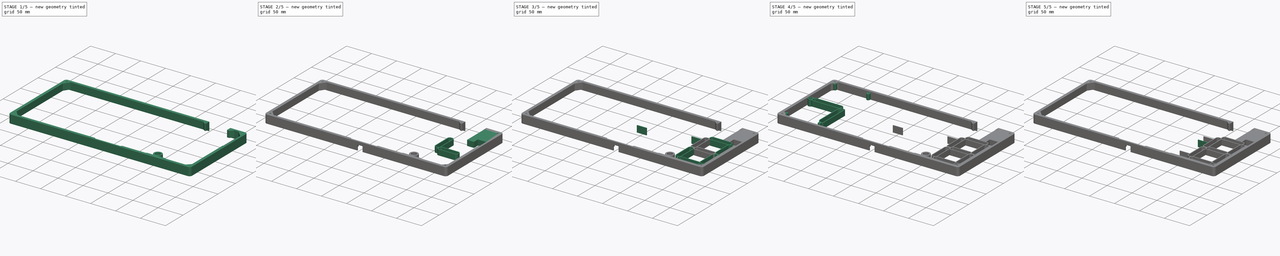
[diagram: build sequence overview — one tinted view per stage of 5, left to right]
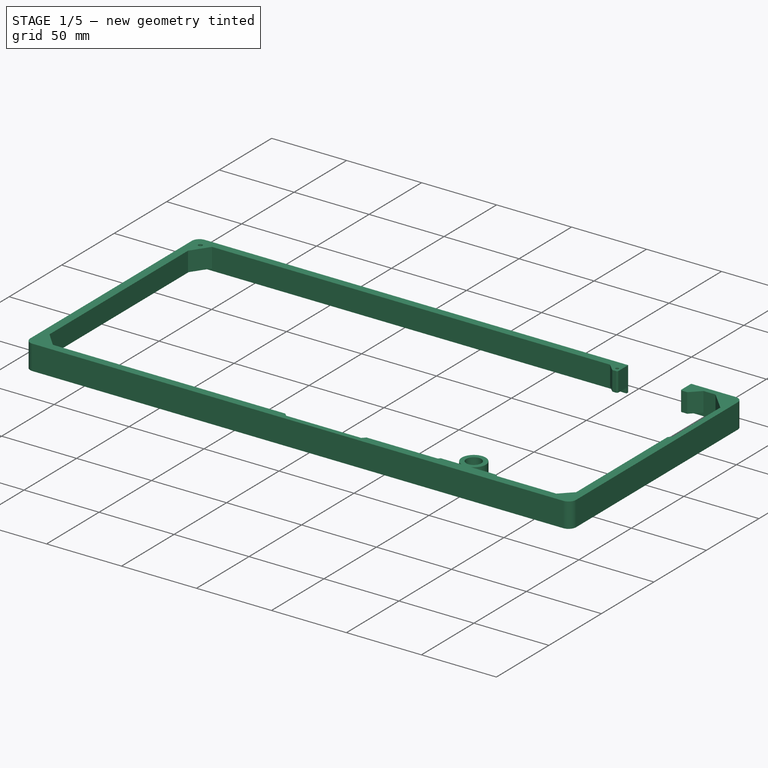
[diagram: stage 1 of 5 — iso view after this stage's code; geometry added in this stage tinted green]
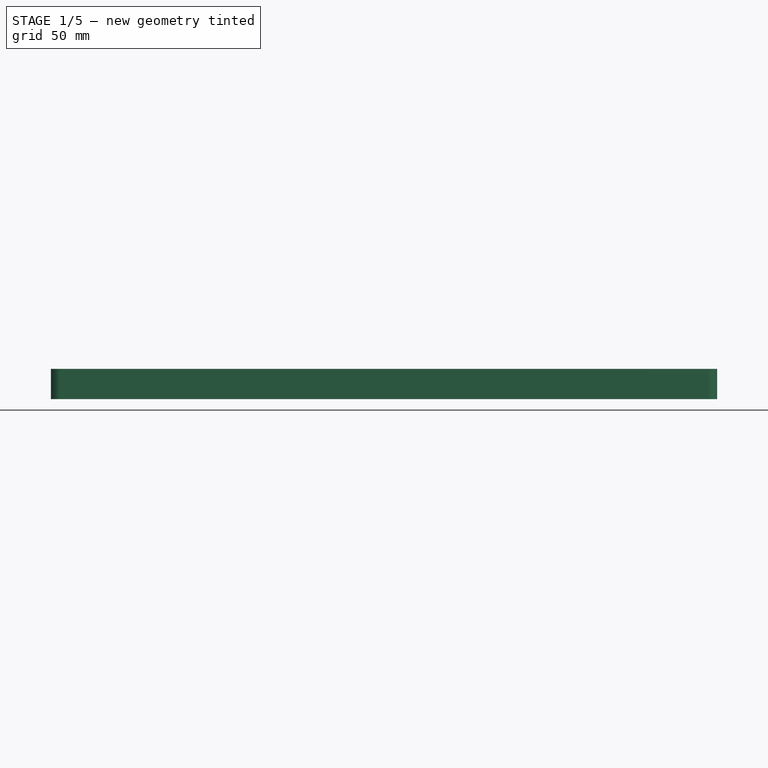
[diagram: stage 1 of 5 — front view after this stage's code; geometry added in this stage tinted green]
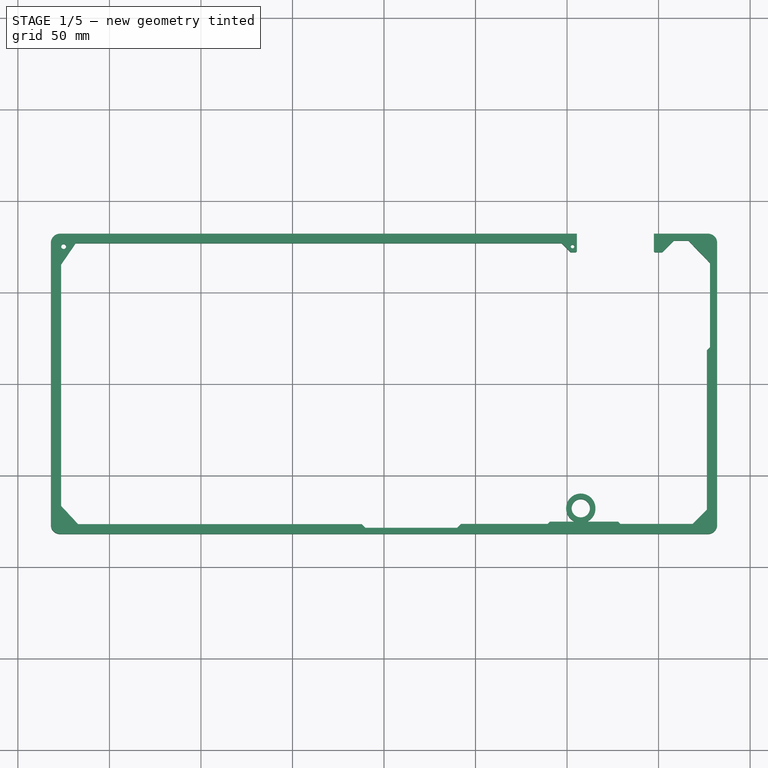
[diagram: stage 1 of 5 — top view after this stage's code; geometry added in this stage tinted green]
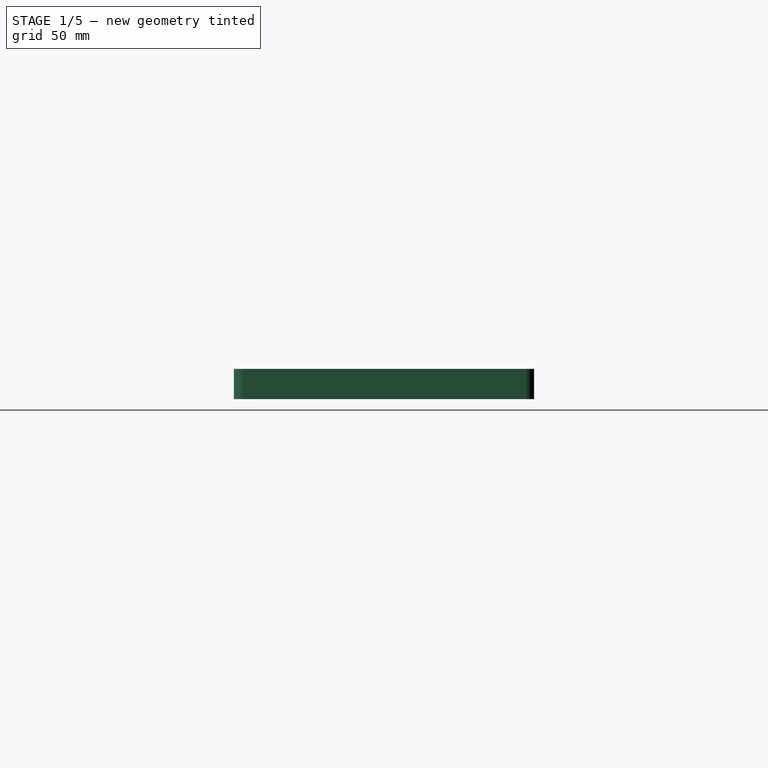
[diagram: stage 1 of 5 — right view after this stage's code; geometry added in this stage tinted green]
FCSTD DOCUMENT  (FreeCAD 1.0R39285 (Git))
Label: digitform_11_tocheck
License: All rights reserved
LicenseURL: https://en.wikipedia.org/wiki/All_rights_reserved
objects: PartDesign::Body×37, Sketcher::SketchObject×26, PartDesign::FeatureBase×20, PartDesign::Pad×15, PartDesign::Pocket×11, PartDesign::Fillet×6, PartDesign::Boolean×3, Image::ImagePlane×1
note: 231 computed .brp shape members not serialized (recipe doc carries the construction recipe); baked Part::Feature solids carry a one-line shape summary decoded from their .brp

FEATURE [PartDesign::Body] Body016
  AllowCompound = false
  Group = -> [Clone007]
  Origin = -> Origin016
  Placement = pos=(196,0,0) rot=(0,0,1;0rad)
  Tip = -> Clone007
FEATURE [Sketcher::SketchObject] Sketch009
  ArcFitTolerance = 1e-06
  AttachmentSupport = -> [XY_Plane020]
  FullyConstrained = true
  MakeInternals = false
  MapMode = 5
  sketch-geometry (2):
    g0: Circle CenterX=107.5 CenterY=-68 CenterZ=0 NormalX=0 NormalY=0 NormalZ=1 AngleXU=0 Radius=5
    g1: Circle CenterX=107.5 CenterY=-68 CenterZ=0 NormalX=0 NormalY=0 NormalZ=1 AngleXU=0 Radius=8
  constraints (5):
    c: Radius(g0) = 5
    c: DistanceX(g-1,g0) = 107.5
    c: DistanceY(g0,g-1) = 68
    c: Coincident(g1,g0)
    c: Radius(g1) = 8
FEATURE [PartDesign::Pad] Pad007
  Direction = (0,0,1)
  Length = 13
  Length2 = 10
  Profile = -> Sketch009
  ReferenceAxis = -> Sketch009 [N_Axis]
  Refine = true
  Suppressed = false
  Type = 0
FEATURE [PartDesign::Body] Body024
  AllowCompound = false
  Group = -> [Sketch011,Pad009]
  Origin = -> Origin024
  Tip = -> Pad009
FEATURE [Sketcher::SketchObject] Sketch012
  ArcFitTolerance = 1e-06
  FullyConstrained = true
  MakeInternals = false
  sketch-geometry (34):
    g0: LineSegment StartX=-177 StartY=82 StartZ=0 EndX=177 EndY=82 EndZ=0
    g1: LineSegment StartX=182 StartY=-77 StartZ=0 EndX=182 EndY=77 EndZ=0
    g2: LineSegment StartX=-177 StartY=-82 StartZ=0 EndX=177 EndY=-82 EndZ=0
    g3: LineSegment StartX=-182 StartY=-77 StartZ=0 EndX=-182 EndY=77 EndZ=0
    g4: ArcOfCircle CenterX=177 CenterY=77 CenterZ=0 NormalX=0 NormalY=0 NormalZ=1 AngleXU=0 Radius=5 StartAngle=0 EndAngle=1.5708
    g5: GeomPoint [constr] X=182 Y=82 Z=0
    g6: ArcOfCircle CenterX=177 CenterY=-77 CenterZ=0 NormalX=0 NormalY=0 NormalZ=1 AngleXU=0 Radius=5 StartAngle=4.71239 EndAngle=6.28319
    g7: GeomPoint [constr] X=182 Y=-82 Z=0
    g8: ArcOfCircle CenterX=-177 CenterY=-77 CenterZ=0 NormalX=0 NormalY=0 NormalZ=1 AngleXU=0 Radius=5 StartAngle=3.14159 EndAngle=4.71239
    g9: GeomPoint [constr] X=-182 Y=-82 Z=0
    g10: ArcOfCircle CenterX=-177 CenterY=77 CenterZ=0 NormalX=0 NormalY=0 NormalZ=1 AngleXU=0 Radius=5 StartAngle=1.5708 EndAngle=3.14159
    g11: GeomPoint [constr] X=-182 Y=82 Z=0
    g12: LineSegment StartX=-168.5 StartY=76.8 StartZ=0 EndX=97 EndY=76.8 EndZ=0
    g13: LineSegment StartX=97 StartY=76.8 StartZ=0 EndX=101.95 EndY=71.8503 EndZ=0
    g14: LineSegment StartX=101.95 StartY=71.8503 StartZ=0 EndX=151.95 EndY=71.8503 EndZ=0
    g15: LineSegment StartX=151.95 StartY=71.8503 StartZ=0 EndX=158.314 EndY=78.2142 EndZ=0
    g16: LineSegment StartX=158.314 StartY=78.2142 StartZ=0 EndX=166.314 EndY=78.2142 EndZ=0
    g17: LineSegment StartX=166.314 StartY=78.2142 StartZ=0 EndX=178.123 EndY=65.9854 EndZ=0
    g18: LineSegment StartX=178.123 StartY=65.9854 StartZ=0 EndX=178.123 EndY=19.9854 EndZ=0
    g19: LineSegment StartX=178.123 StartY=19.9854 StartZ=0 EndX=176.355 EndY=18.2177 EndZ=0
    g20: LineSegment StartX=176.355 StartY=18.2177 StartZ=0 EndX=176.355 EndY=-68.7823 EndZ=0
    g21: LineSegment StartX=176.355 StartY=-68.7823 StartZ=0 EndX=168.555 EndY=-76.5823 EndZ=0
    g22: LineSegment StartX=168.555 StartY=-76.5823 StartZ=0 EndX=129.155 EndY=-76.5823 EndZ=0
    g23: LineSegment StartX=129.155 StartY=-76.5823 StartZ=0 EndX=127.882 EndY=-75.3095 EndZ=0
    g24: LineSegment StartX=127.882 StartY=-75.3095 StartZ=0 EndX=90.6824 EndY=-75.3095 EndZ=0
    g25: LineSegment StartX=90.6824 StartY=-75.3095 StartZ=0 EndX=89.4096 EndY=-76.5823 EndZ=0
    g26: LineSegment StartX=-176.392 StartY=-66.7238 StartZ=0 EndX=-176.392 EndY=65.2762 EndZ=0
    g27: LineSegment StartX=-176.392 StartY=65.2762 StartZ=0 EndX=-168.5 EndY=76.8 EndZ=0
    g28: LineSegment StartX=-167.092 StartY=-76.7238 StartZ=0 EndX=-12.0917 EndY=-76.7238 EndZ=0
    g29: LineSegment StartX=-12.0917 StartY=-76.7238 StartZ=0 EndX=-10.1118 EndY=-78.7037 EndZ=0
    g30: LineSegment StartX=-10.1118 StartY=-78.7037 StartZ=0 EndX=39.8882 EndY=-78.7037 EndZ=0
    g31: LineSegment StartX=39.8882 StartY=-78.7037 StartZ=0 EndX=42.0096 EndY=-76.5823 EndZ=0
    g32: LineSegment StartX=42.0096 StartY=-76.5823 StartZ=0 EndX=89.4096 EndY=-76.5823 EndZ=0
    g33: LineSegment StartX=-167.092 StartY=-76.7238 StartZ=0 EndX=-176.392 EndY=-66.7238 EndZ=0
  constraints (94):
    c: Horizontal(g0)
    c: Vertical(g1)
    c: Horizontal(g2)
    c: Vertical(g3)
    c: DistanceX(g11,g5) = 364
    c: DistanceX(g11,g-1) = 182
    c: DistanceY(g-1,g5) = 82
    c: DistanceY(g7,g-1) = 82
    c: PointOnObject(g5,g0)
    c: PointOnObject(g5,g1)
    c: Tangent(g0,g4) = 1.5708
    c: Tangent(g1,g4) = -1.5708
    c: Radius(g4) = 5
    c: PointOnObject(g7,g1)
    c: PointOnObject(g7,g2)
    c: Tangent(g1,g6) = -1.5708
    c: Tangent(g2,g6) = -1.5708
    c: Radius(g6) = 5
    c: PointOnObject(g9,g3)
    c: PointOnObject(g9,g2)
    c: Tangent(g3,g8) = 1.5708
    c: Tangent(g2,g8) = -1.5708
    c: Radius(g8) = 5
    c: PointOnObject(g11,g3)
    c: PointOnObject(g11,g0)
    c: Tangent(g3,g10) = 1.5708
    c: Tangent(g0,g10) = 1.5708
    c: Radius(g10) = 5
    c: Horizontal(g12)
    c: DistanceY(g-1,g12) = 76.8
    c: Distance(g13) = 7
    c: Angle(g-1,g13) = -0.785398
    c: Coincident(g13,g12)
    c: DistanceX(g12,g12) = 265.5
    c: DistanceX(g-1,g12) = 97
    c: Distance(g14) = 50
    c: Coincident(g14,g13)
    c: Horizontal(g14)
    c: Distance(g15) = 9
    c: Angle(g-1,g15) = 0.785398
    c: Coincident(g15,g14)
    c: Distance(g16) = 8
    c: Coincident(g16,g15)
    c: Horizontal(g16)
    c: Distance(g17) = 17
    c: Angle(g-1,g17) = -0.802851
    c: Coincident(g17,g16)
    c: Distance(g18) = 46
    c: Coincident(g18,g17)
    c: Vertical(g18)
    c: Distance(g19) = 2.5
    c: Angle(g-1,g19) = -2.35619
    c: Coincident(g19,g18)
    c: Distance(g20) = 87
    c: Coincident(g20,g19)
    c: Vertical(g20)
    c: Angle(g-1,g21) = -2.35619
    c: Coincident(g21,g20)
    c: Coincident(g22,g21)
    c: Horizontal(g22)
    c: Distance(g23) = 1.8
    c: Angle(g-1,g23) = 2.35619
    c: Coincident(g23,g22)
    c: Coincident(g24,g23)
    c: Horizontal(g24)
    c: Distance(g25) = 1.8
    c: Angle(g-1,g25) = -2.35619
    c: Coincident(g25,g24)
    c: Distance(g26) = 132
    c: Vertical(g26)
    c: Coincident(g27,g26)
    c: Coincident(g27,g12)
    c: DistanceX(g21,g20) = 7.8
    c: DistanceX(g22,g21) = 39.4
    c: DistanceX(g24,g23) = 37.2
    c: Distance(g28) = 155
    c: Horizontal(g28)
    c: Distance(g29) = 2.8
    c: Angle(g-1,g29) = -0.785398
    c: Coincident(g29,g28)
    c: Distance(g30) = 50
    c: Horizontal(g30)
    c: Coincident(g30,g29)
    c: Distance(g31) = 3
    c: Angle(g-1,g31) = 0.785398
    c: Coincident(g31,g30)
    c: Coincident(g32,g31)
    c: Coincident(g32,g25)
    c: Horizontal(g32)
    c: DistanceX(g31,g25) = 47.4
    c: Coincident(g33,g28)
    c: Coincident(g33,g26)
    c: DistanceX(g26,g28) = 9.3
    c: DistanceY(g28,g26) = 10
FEATURE [PartDesign::Pad] Pad010
  Direction = (0,0,1)
  Length = 13
  Length2 = 10
  Profile = -> Sketch012
  ReferenceAxis = -> Sketch012 [N_Axis]
  Refine = true
  Suppressed = false
  Type = 0
FEATURE [PartDesign::Body] Body035
  AllowCompound = false
  Group = -> [Boolean001]
  Origin = -> Origin035
  Placement = pos=(0,0.4,0) rot=(0,0,1;0rad)
  Tip = -> Boolean001
FEATURE [Sketcher::SketchObject] Sketch017
  ArcFitTolerance = 1e-06
  AttachmentOffset = pos=(0,0,13) rot=(0,0,1;0rad)
  AttachmentSupport = -> [XY_Plane028]
  FullyConstrained = true
  MakeInternals = false
  MapMode = 5
  Placement = pos=(0,0,13) rot=(0,0,1;0rad)
  sketch-geometry (1):
    g0: Circle CenterX=-175 CenterY=75 CenterZ=0 NormalX=0 NormalY=0 NormalZ=1 AngleXU=0 Radius=1.35
  constraints (3):
    c: Diameter(g0) = 2.7
    c: DistanceY(g-1,g0) = 75
    c: DistanceX(g0,g-1) = 175
FEATURE [Sketcher::SketchObject] Sketch018
  ArcFitTolerance = 1e-06
  AttachmentOffset = pos=(0,0,13) rot=(0,0,1;0rad)
  AttachmentSupport = -> [XY_Plane028]
  FullyConstrained = true
  MakeInternals = false
  MapMode = 5
  Placement = pos=(0,0,13) rot=(0,0,1;0rad)
  sketch-geometry (1):
    g0: Circle CenterX=103 CenterY=75 CenterZ=0 NormalX=0 NormalY=0 NormalZ=1 AngleXU=0 Radius=1
  constraints (3):
    c: Radius(g0) = 1
    c: DistanceX(g-1,g0) = 103
    c: DistanceY(g-1,g0) = 75
FEATURE [Sketcher::SketchObject] Sketch019
  ArcFitTolerance = 1e-06
  AttachmentOffset = pos=(0,0,13) rot=(0,0,1;0rad)
  AttachmentSupport = -> [XY_Plane028]
  FullyConstrained = true
  MakeInternals = false
  MapMode = 5
  Placement = pos=(0,0,13) rot=(0,0,1;0rad)
  sketch-geometry (1):
    g0: Circle CenterX=150 CenterY=75 CenterZ=0 NormalX=0 NormalY=0 NormalZ=1 AngleXU=0 Radius=1
  constraints (3):
    c: Radius(g0) = 1
    c: DistanceX(g-1,g0) = 150
    c: DistanceY(g-1,g0) = 75
FEATURE [Sketcher::SketchObject] Sketch020
  ArcFitTolerance = 1e-06
  AttachmentOffset = pos=(0,0,13) rot=(0,0,1;0rad)
  AttachmentSupport = -> [XY_Plane028]
  FullyConstrained = true
  MakeInternals = false
  MapMode = 5
  Placement = pos=(0,0,13) rot=(0,0,1;0rad)
  sketch-geometry (1):
    g0: Circle CenterX=175 CenterY=75 CenterZ=0 NormalX=0 NormalY=0 NormalZ=1 AngleXU=0 Radius=1.4
  constraints (3):
    c: Diameter(g0) = 2.8
    c: DistanceX(g-1,g0) = 175
    c: DistanceY(g-1,g0) = 75
FEATURE [Sketcher::SketchObject] Sketch021
  ArcFitTolerance = 1e-06
  AttachmentOffset = pos=(0,0,13) rot=(0,0,1;0rad)
  AttachmentSupport = -> [XY_Plane028]
  FullyConstrained = true
  MakeInternals = false
  MapMode = 5
  Placement = pos=(0,0,13) rot=(0,0,1;0rad)
  sketch-geometry (1):
    g0: Circle CenterX=175 CenterY=-75 CenterZ=0 NormalX=0 NormalY=0 NormalZ=1 AngleXU=0 Radius=1.4
  constraints (3):
    c: Diameter(g0) = 2.8
    c: DistanceX(g-1,g0) = 175
    c: DistanceY(g0,g-1) = 75
FEATURE [Sketcher::SketchObject] Sketch022
  ArcFitTolerance = 1e-06
  AttachmentOffset = pos=(0,0,13) rot=(0,0,1;0rad)
  AttachmentSupport = -> [XY_Plane028]
  FullyConstrained = true
  MakeInternals = false
  MapMode = 5
  Placement = pos=(0,0,13) rot=(0,0,1;0rad)
  sketch-geometry (1):
    g0: Circle CenterX=-175 CenterY=-75 CenterZ=0 NormalX=0 NormalY=0 NormalZ=1 AngleXU=0 Radius=1.4
  constraints (3):
    c: Diameter(g0) = 2.8
    c: DistanceY(g0,g-1) = 75
    c: DistanceX(g0,g-1) = 175
FEATURE [Sketcher::SketchObject] Sketch024
  ArcFitTolerance = 1e-06
  AttachmentOffset = pos=(0,0,2) rot=(0,0,1;0rad)
  AttachmentSupport = -> [XY_Plane028]
  FullyConstrained = true
  MakeInternals = false
  MapMode = 5
  Placement = pos=(0,0,2) rot=(0,0,1;0rad)
  sketch-geometry (10):
    g0: LineSegment StartX=154.804 StartY=75.3317 StartZ=0 EndX=157.986 EndY=78.5137 EndZ=0
    g1: LineSegment StartX=157.986 StartY=78.5137 StartZ=0 EndX=167.486 EndY=78.5137 EndZ=0
    g2: LineSegment StartX=167.486 StartY=78.5137 StartZ=0 EndX=178.8 EndY=67.2 EndZ=0
    g3: LineSegment StartX=178.8 StartY=67.2 StartZ=0 EndX=178.8 EndY=37.2 EndZ=0
    g4: LineSegment StartX=178.8 StartY=37.2 StartZ=0 EndX=161.8 EndY=37.2 EndZ=0
    g5: LineSegment StartX=161.8 StartY=37.2 StartZ=0 EndX=161.8 EndY=26 EndZ=0
    g6: LineSegment StartX=161.8 StartY=26 StartZ=0 EndX=148 EndY=26 EndZ=0
    g7: LineSegment StartX=148 StartY=26 StartZ=0 EndX=148 EndY=72.5 EndZ=0
    g8: LineSegment StartX=148 StartY=72.5 StartZ=0 EndX=152 EndY=72.5 EndZ=0
    g9: LineSegment StartX=154.804 StartY=75.3317 StartZ=0 EndX=152 EndY=72.5 EndZ=0
  constraints (30):
    c: Distance(g0) = 4.5
    c: Angle(g-1,g0) = 0.785398
    c: Distance(g1) = 9.5
    c: Horizontal(g1)
    c: Coincident(g1,g0)
    c: Distance(g2) = 16
    c: Angle(g-1,g2) = -0.785398
    c: Coincident(g2,g1)
    c: Distance(g3) = 30
    c: Vertical(g3)
    c: Coincident(g3,g2)
    c: Distance(g4) = 17
    c: Horizontal(g4)
    c: Coincident(g4,g3)
    c: Distance(g5) = 11.2
    c: Vertical(g5)
    c: Coincident(g5,g4)
    c: Distance(g6) = 13.8
    c: Horizontal(g6)
    c: Coincident(g6,g5)
    c: Distance(g7) = 46.5
    c: Vertical(g7)
    c: Coincident(g7,g6)
    c: Distance(g8) = 4
    c: Horizontal(g8)
    c: Coincident(g8,g7)
    c: Coincident(g9,g0)
    c: Coincident(g9,g8)
    c: DistanceX(g-1,g6) = 148
    c: DistanceY(g-1,g6) = 26
FEATURE [Sketcher::SketchObject] Sketch025
  ArcFitTolerance = 1e-06
  AttachmentOffset = pos=(0,0,13) rot=(0,0,1;0rad)
  AttachmentSupport = -> [XY_Plane028]
  FullyConstrained = true
  MakeInternals = false
  MapMode = 5
  Placement = pos=(0,0,13) rot=(0,0,1;0rad)
  sketch-geometry (1):
    g0: Circle CenterX=160.8 CenterY=56.4 CenterZ=0 NormalX=0 NormalY=0 NormalZ=1 AngleXU=0 Radius=0.25
  constraints (3):
    c: Diameter(g0) = 0.5
    c: DistanceX(g-1,g0) = 160.8
    c: DistanceY(g-1,g0) = 56.4
FEATURE [Sketcher::SketchObject] Sketch026
  ArcFitTolerance = 1e-06
  AttachmentOffset = pos=(0,0,-3.5) rot=(0,0,1;0rad)
  AttachmentSupport = -> [XY_Plane028]
  FullyConstrained = true
  MakeInternals = false
  MapMode = 5
  Placement = pos=(0,0,-3.5) rot=(0,0,1;0rad)
  sketch-geometry (24):
    g0: LineSegment StartX=-180.5 StartY=75.5 StartZ=0 EndX=-180.5 EndY=-75.5 EndZ=0
    g1: LineSegment StartX=-175.5 StartY=-80.5 StartZ=0 EndX=175.5 EndY=-80.5 EndZ=0
    g2: LineSegment StartX=180.5 StartY=-75.5 StartZ=0 EndX=180.5 EndY=75.5 EndZ=0
    g3: LineSegment StartX=175.5 StartY=80.5 StartZ=0 EndX=-175.5 EndY=80.5 EndZ=0
    g4: ArcOfCircle CenterX=-175.5 CenterY=75.5 CenterZ=0 NormalX=0 NormalY=0 NormalZ=1 AngleXU=0 Radius=5 StartAngle=1.5708 EndAngle=3.14159
    g5: GeomPoint [constr] X=-180.5 Y=80.5 Z=0
    g6: ArcOfCircle CenterX=-175.5 CenterY=-75.5 CenterZ=0 NormalX=0 NormalY=0 NormalZ=1 AngleXU=0 Radius=5 StartAngle=3.14159 EndAngle=4.71239
    g7: GeomPoint [constr] X=-180.5 Y=-80.5 Z=0
    g8: ArcOfCircle CenterX=175.5 CenterY=75.5 CenterZ=0 NormalX=0 NormalY=0 NormalZ=1 AngleXU=0 Radius=5 StartAngle=-9e-16 EndAngle=1.5708
    g9: GeomPoint [constr] X=180.5 Y=80.5 Z=0
    g10: ArcOfCircle CenterX=175.5 CenterY=-75.5 CenterZ=0 NormalX=0 NormalY=0 NormalZ=1 AngleXU=0 Radius=5 StartAngle=4.71239 EndAngle=6.28319
    g11: GeomPoint [constr] X=180.5 Y=-80.5 Z=0
    g12: LineSegment StartX=-182 StartY=77 StartZ=0 EndX=-182 EndY=-77 EndZ=0
    g13: LineSegment StartX=-177 StartY=-82 StartZ=0 EndX=177 EndY=-82 EndZ=0
    g14: LineSegment StartX=182 StartY=-77 StartZ=0 EndX=182 EndY=77 EndZ=0
    g15: LineSegment StartX=177 StartY=82 StartZ=0 EndX=-177 EndY=82 EndZ=0
    g16: ArcOfCircle CenterX=-177 CenterY=77 CenterZ=0 NormalX=0 NormalY=0 NormalZ=1 AngleXU=0 Radius=5 StartAngle=1.5708 EndAngle=3.14159
    g17: GeomPoint [constr] X=-182 Y=82 Z=0
    g18: ArcOfCircle CenterX=177 CenterY=77 CenterZ=0 NormalX=0 NormalY=0 NormalZ=1 AngleXU=0 Radius=5 StartAngle=2.12183e-11 EndAngle=1.5708
    g19: GeomPoint [constr] X=182 Y=82 Z=0
    g20: ArcOfCircle CenterX=177 CenterY=-77 CenterZ=0 NormalX=0 NormalY=0 NormalZ=1 AngleXU=0 Radius=5 StartAngle=4.71239 EndAngle=6.28319
    g21: GeomPoint [constr] X=182 Y=-82 Z=0
    g22: ArcOfCircle CenterX=-177 CenterY=-77 CenterZ=0 NormalX=0 NormalY=0 NormalZ=1 AngleXU=0 Radius=5 StartAngle=3.14159 EndAngle=4.71239
    g23: GeomPoint [constr] X=-182 Y=-82 Z=0
  constraints (56):
    c: Vertical(g0)
    c: Vertical(g2)
    c: Horizontal(g1)
    c: Horizontal(g3)
    c: DistanceY(g-1,g5) = 80.5
    c: DistanceY(g11,g-1) = 80.5
    c: DistanceX(g-1,g11) = 180.5
    c: DistanceX(g7,g-1) = 180.5
    c: PointOnObject(g5,g0)
    c: PointOnObject(g5,g3)
    c: Tangent(g0,g4) = -1.5708
    c: Tangent(g3,g4) = -1.5708
    c: Radius(g4) = 5
    c: PointOnObject(g7,g0)
    c: PointOnObject(g7,g1)
    c: Tangent(g0,g6) = -1.5708
    c: Tangent(g1,g6) = -1.5708
    c: Radius(g6) = 5
    c: PointOnObject(g9,g3)
    c: PointOnObject(g9,g2)
    c: Tangent(g3,g8) = -1.5708
    c: Tangent(g2,g8) = -1.5708
    c: Radius(g8) = 5
    c: PointOnObject(g11,g2)
    c: PointOnObject(g11,g1)
    c: Tangent(g2,g10) = -1.5708
    c: Tangent(g1,g10) = -1.5708
    c: Radius(g10) = 5
    c: Vertical(g12)
    c: Vertical(g14)
    c: Horizontal(g13)
    c: Horizontal(g15)
    c: DistanceX(g17,g-1) = 182
    c: DistanceY(g-1,g17) = 82
    c: DistanceX(g-1,g21) = 182
    c: DistanceY(g21,g-1) = 82
    c: PointOnObject(g17,g12)
    c: PointOnObject(g17,g15)
    c: Tangent(g12,g16) = -1.5708
    c: Tangent(g15,g16) = -1.5708
    c: Radius(g16) = 5
    c: PointOnObject(g19,g15)
    c: PointOnObject(g19,g14)
    c: Tangent(g15,g18) = -1.5708
    c: Tangent(g14,g18) = -1.5708
    c: Radius(g18) = 5
    c: PointOnObject(g21,g14)
    c: PointOnObject(g21,g13)
    c: Tangent(g14,g20) = -1.5708
    c: Tangent(g13,g20) = -1.5708
    c: Radius(g20) = 5
    c: PointOnObject(g23,g12)
    c: PointOnObject(g23,g13)
    c: Tangent(g12,g22) = -1.5708
    c: Tangent(g13,g22) = -1.5708
    c: Radius(g22) = 5
FEATURE [PartDesign::Pad] Pad014
  BaseFeature = -> Pad010
  Direction = (0,0,1)
  Length = 3.6
  Length2 = 10
  Profile = -> Sketch026
  ReferenceAxis = -> Sketch026 [N_Axis]
  Refine = true
  Suppressed = false
  Type = 0
FEATURE [PartDesign::Pocket] Pocket
  BaseFeature = -> Pad014
  Direction = (0,0,-1)
  Length = 18
  Length2 = 5
  Profile = -> Sketch013
  ReferenceAxis = -> Sketch013 [N_Axis]
  Refine = true
  Suppressed = false
  Type = 0
FEATURE [PartDesign::Fillet] Fillet
  Base = -> Pocket [Edge27]
  BaseFeature = -> Pocket
  Radius = 1
  Refine = true
  SupportTransform = false
  Suppressed = false
  UseAllEdges = false
FEATURE [PartDesign::Fillet] Fillet001
  Base = -> Fillet [Edge115]
  BaseFeature = -> Fillet
  Radius = 1
  Refine = true
  SupportTransform = false
  Suppressed = false
  UseAllEdges = false
FEATURE [PartDesign::Pocket] Pocket001
  BaseFeature = -> Fillet001
  Direction = (0,0,-1)
  Length = 8
  Length2 = 5
  Profile = -> Sketch014
  ReferenceAxis = -> Sketch014 [N_Axis]
  Refine = true
  Suppressed = false
  Type = 0
FEATURE [PartDesign::Fillet] Fillet002
  Base = -> Pocket001 [Edge144]
  BaseFeature = -> Pocket001
  Radius = 1
  Refine = true
  SupportTransform = false
  Suppressed = false
  UseAllEdges = false
FEATURE [PartDesign::Pocket] Pocket002
  BaseFeature = -> Fillet002
  Direction = (0,0,-1)
  Length = 13
  Length2 = 5
  Profile = -> Sketch017
  ReferenceAxis = -> Sketch017 [N_Axis]
  Refine = true
  Suppressed = false
  Type = 0
FEATURE [PartDesign::Pocket] Pocket003
  BaseFeature = -> Pocket002
  Direction = (0,0,-1)
  Length = 13
  Length2 = 5
  Profile = -> Sketch018
  ReferenceAxis = -> Sketch018 [N_Axis]
  Refine = true
  Suppressed = false
  Type = 0
FEATURE [PartDesign::Body] Body025
  AllowCompound = false
  Group = -> [Sketch012,Pad010,Pad014,Sketch013,Pocket,Sketch014,Fillet,Fillet001,Pocket001,Fillet002,Sketch017,Pocket002,Sketch018,Pocket003,Sketch019,Pocket004,Sketch020,Pocket005,Sketch021,Pocket006,Sketch022,Pocket007,Sketch024,Pad013,Sketch025,Pocket008,Sketch026,Sketch028,Pocket009]
  Origin = -> Origin025
  Tip = -> Pocket009
FEATURE [Sketcher::SketchObject] Sketch029
  ArcFitTolerance = 1e-06
  AttachmentOffset = pos=(0,0,2) rot=(0,0,1;0rad)
  AttachmentSupport = -> [XY_Plane020]
  FullyConstrained = true
  MakeInternals = false
  MapMode = 5
  Placement = pos=(0,0,2) rot=(0,0,1;0rad)
  sketch-geometry (4):
    g0: LineSegment StartX=110 StartY=-66.2 StartZ=0 EndX=110 EndY=-69.7 EndZ=0
    g1: LineSegment StartX=110 StartY=-69.7 StartZ=0 EndX=115.7 EndY=-69.7 EndZ=0
    g2: LineSegment StartX=115.7 StartY=-69.7 StartZ=0 EndX=115.7 EndY=-66.2 EndZ=0
    g3: LineSegment StartX=115.7 StartY=-66.2 StartZ=0 EndX=110 EndY=-66.2 EndZ=0
  constraints (12):
    c: Coincident(g0,g1)
    c: Coincident(g1,g2)
    c: Coincident(g2,g3)
    c: Coincident(g3,g0)
    c: Vertical(g0)
    c: Vertical(g2)
    c: Horizontal(g1)
    c: Horizontal(g3)
    c: DistanceY(g1,g2) = 3.5
    c: DistanceX(g0,g1) = 5.7
    c: DistanceY(g0,g-1) = 66.2
    c: DistanceX(g-1,g0) = 110
FEATURE [PartDesign::Pocket] Pocket010
  BaseFeature = -> Pad007
  Direction = (0,0,-1)
  Length = 3
  Length2 = 5
  Profile = -> Sketch029
  ReferenceAxis = -> Sketch029 [N_Axis]
  Refine = true
  Suppressed = false
  Type = 0
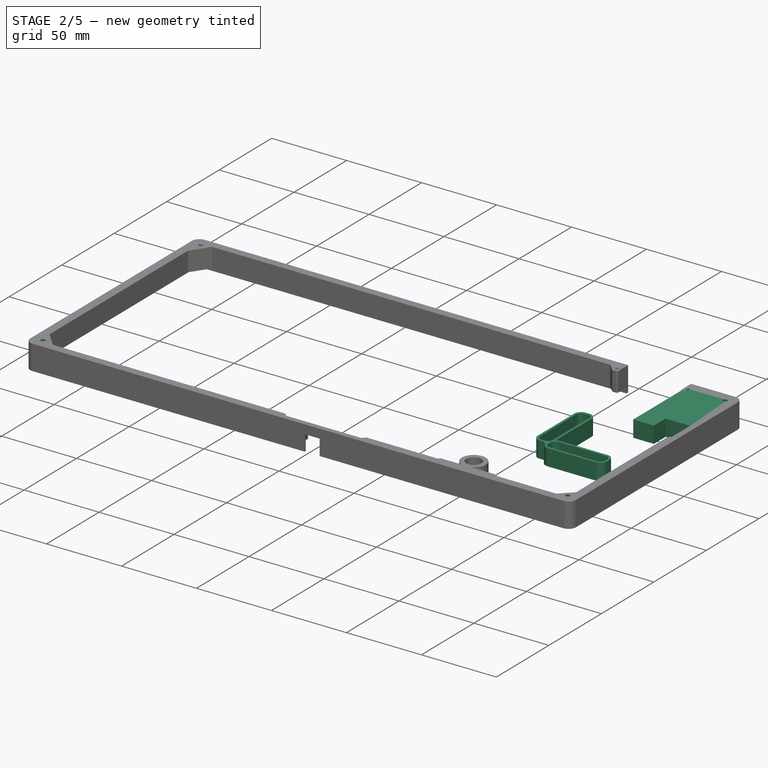
[diagram: stage 2 of 5 — iso view after this stage's code; geometry added in this stage tinted green]
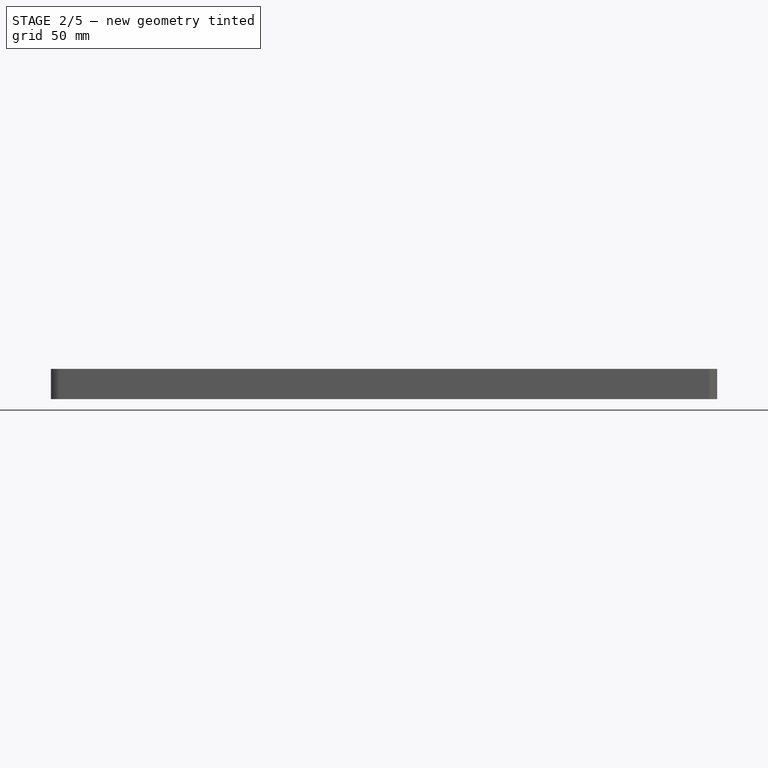
[diagram: stage 2 of 5 — front view after this stage's code; geometry added in this stage tinted green]
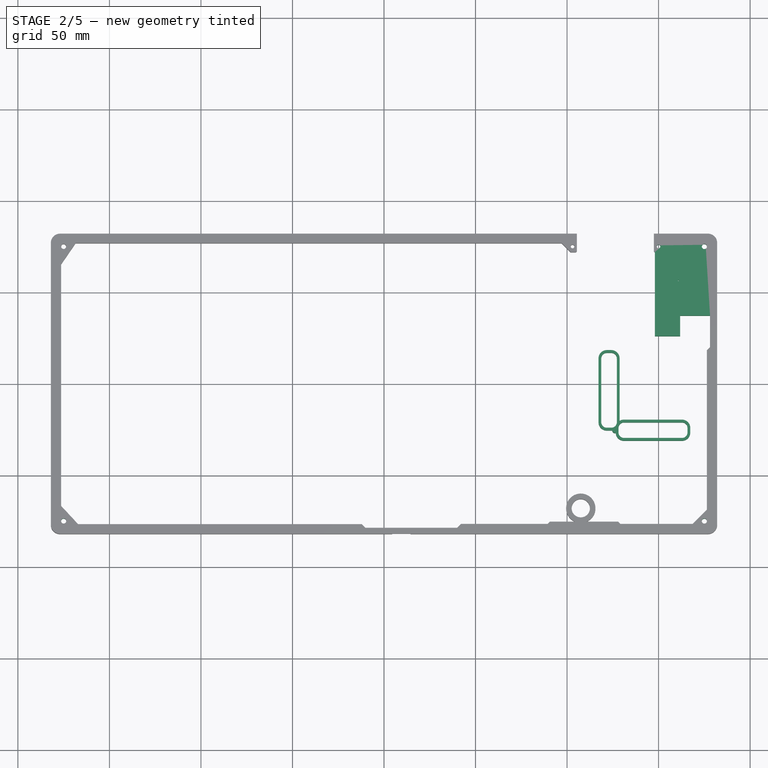
[diagram: stage 2 of 5 — top view after this stage's code; geometry added in this stage tinted green]
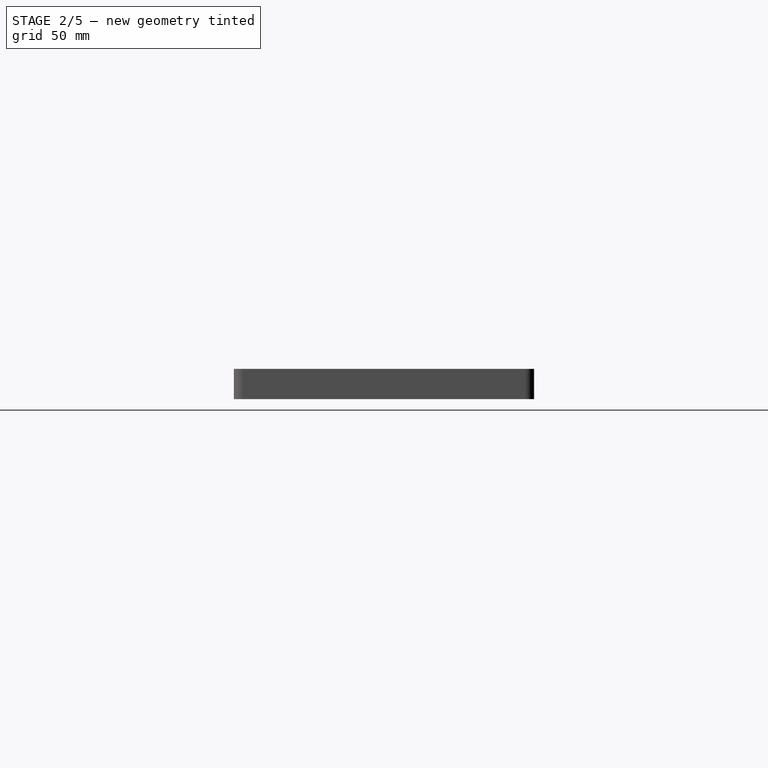
[diagram: stage 2 of 5 — right view after this stage's code; geometry added in this stage tinted green]
FEATURE [Sketcher::SketchObject] Sketch010
  ArcFitTolerance = 1e-06
  AttachmentOffset = pos=(0,0,2) rot=(0,0,1;0rad)
  AttachmentSupport = -> [XY_Plane021]
  FullyConstrained = true
  MakeInternals = false
  MapMode = 5
  Placement = pos=(0,0,2) rot=(0,0,1;0rad)
  sketch-geometry (24):
    g0: LineSegment StartX=118.7 StartY=13.9 StartZ=0 EndX=118.7 EndY=-21 EndZ=0
    g1: LineSegment StartX=121.7 StartY=-24 StartZ=0 EndX=124.2 EndY=-24 EndZ=0
    g2: LineSegment StartX=127.2 StartY=-21 StartZ=0 EndX=127.2 EndY=13.9 EndZ=0
    g3: LineSegment StartX=124.2 StartY=16.9 StartZ=0 EndX=121.7 EndY=16.9 EndZ=0
    g4: ArcOfCircle CenterX=124.2 CenterY=13.9 CenterZ=0 NormalX=0 NormalY=0 NormalZ=1 AngleXU=0 Radius=3 StartAngle=2e-16 EndAngle=1.5708
    g5: GeomPoint [constr] X=127.2 Y=16.9 Z=0
    g6: ArcOfCircle CenterX=121.7 CenterY=13.9 CenterZ=0 NormalX=0 NormalY=0 NormalZ=1 AngleXU=0 Radius=3 StartAngle=1.5708 EndAngle=3.14159
    g7: GeomPoint [constr] X=118.7 Y=16.9 Z=0
    g8: ArcOfCircle CenterX=121.7 CenterY=-21 CenterZ=0 NormalX=0 NormalY=0 NormalZ=1 AngleXU=0 Radius=3 StartAngle=3.14159 EndAngle=4.71239
    g9: GeomPoint [constr] X=118.7 Y=-24 Z=0
    g10: ArcOfCircle CenterX=124.2 CenterY=-21 CenterZ=0 NormalX=0 NormalY=0 NormalZ=1 AngleXU=0 Radius=3 StartAngle=4.71239 EndAngle=6.28319
    g11: GeomPoint [constr] X=127.2 Y=-24 Z=0
    g12: LineSegment StartX=117.2 StartY=13.9 StartZ=0 EndX=117.2 EndY=-21 EndZ=0
    g13: LineSegment StartX=121.7 StartY=-25.5 StartZ=0 EndX=124.2 EndY=-25.5 EndZ=0
    g14: LineSegment StartX=128.7 StartY=-21 StartZ=0 EndX=128.7 EndY=13.9 EndZ=0
    g15: LineSegment StartX=124.2 StartY=18.4 StartZ=0 EndX=121.7 EndY=18.4 EndZ=0
    g16: ArcOfCircle CenterX=124.2 CenterY=13.9 CenterZ=0 NormalX=0 NormalY=0 NormalZ=1 AngleXU=0 Radius=4.5 StartAngle=2e-16 EndAngle=1.5708
    g17: GeomPoint [constr] X=128.7 Y=18.4 Z=0
    g18: ArcOfCircle CenterX=121.7 CenterY=13.9 CenterZ=0 NormalX=0 NormalY=0 NormalZ=1 AngleXU=0 Radius=4.5 StartAngle=1.5708 EndAngle=3.14159
    g19: GeomPoint [constr] X=117.2 Y=18.4 Z=0
    g20: ArcOfCircle CenterX=121.7 CenterY=-21 CenterZ=0 NormalX=0 NormalY=0 NormalZ=1 AngleXU=0 Radius=4.5 StartAngle=3.14159 EndAngle=4.71239
    g21: GeomPoint [constr] X=117.2 Y=-25.5 Z=0
    g22: ArcOfCircle CenterX=124.2 CenterY=-21 CenterZ=0 NormalX=0 NormalY=0 NormalZ=1 AngleXU=0 Radius=4.5 StartAngle=4.71239 EndAngle=6.28319
    g23: GeomPoint [constr] X=128.7 Y=-25.5 Z=0
  constraints (56):
    c: Vertical(g0)
    c: Vertical(g2)
    c: Horizontal(g1)
    c: Horizontal(g3)
    c: PointOnObject(g5,g3)
    c: PointOnObject(g5,g2)
    c: Tangent(g3,g4) = -1.5708
    c: Tangent(g2,g4) = -1.5708
    c: Radius(g4) = 3
    c: PointOnObject(g7,g3)
    c: PointOnObject(g7,g0)
    c: Tangent(g3,g6) = -1.5708
    c: Tangent(g0,g6) = -1.5708
    c: Radius(g6) = 3
    c: DistanceX(g0,g2) = 8.5
    c: PointOnObject(g9,g1)
    c: PointOnObject(g9,g0)
    c: Tangent(g1,g8) = -1.5708
    c: Tangent(g0,g8) = -1.5708
    c: Radius(g8) = 3
    c: PointOnObject(g11,g1)
    c: PointOnObject(g11,g2)
    c: Tangent(g1,g10) = -1.5708
    c: Tangent(g2,g10) = -1.5708
    c: Radius(g10) = 3
    c: DistanceY(g0,g-1) = 21
    c: DistanceX(g-1,g0) = 118.7
    c: DistanceY(g2,g2) = 34.9
    c: Vertical(g12)
    c: Vertical(g14)
    c: Horizontal(g13)
    c: Horizontal(g15)
    c: PointOnObject(g17,g15)
    c: PointOnObject(g17,g14)
    c: Tangent(g15,g16) = -1.5708
    c: Tangent(g14,g16) = -1.5708
    c: Radius(g16) = 4.5
    c: PointOnObject(g19,g15)
    c: PointOnObject(g19,g12)
    c: Tangent(g15,g18) = -1.5708
    c: Tangent(g12,g18) = -1.5708
    c: Radius(g18) = 4.5
    c: DistanceX(g12,g14) = 11.5
    c: PointOnObject(g21,g13)
    c: PointOnObject(g21,g12)
    c: Tangent(g13,g20) = -1.5708
    c: Tangent(g12,g20) = -1.5708
    c: Radius(g20) = 4.5
    c: PointOnObject(g23,g13)
    c: PointOnObject(g23,g14)
    c: Tangent(g13,g22) = -1.5708
    c: Tangent(g14,g22) = -1.5708
    c: Radius(g22) = 4.5
    c: DistanceY(g14,g14) = 34.9
    c: DistanceX(g15,g3) = 0
    c: DistanceY(g0,g12) = 0
FEATURE [PartDesign::Pad] Pad008
  Direction = (0,0,1)
  Length = 11
  Length2 = 10
  Profile = -> Sketch010
  ReferenceAxis = -> Sketch010 [N_Axis]
  Refine = true
  Suppressed = false
  Type = 0
FEATURE [PartDesign::Body] Body023
  AllowCompound = false
  Group = -> [Clone012]
  Origin = -> Origin023
  Placement = pos=(-48,0,0) rot=(0,0,1;0rad)
  Tip = -> Clone012
FEATURE [Sketcher::SketchObject] Sketch011
  ArcFitTolerance = 1e-06
  AttachmentOffset = pos=(0,0,2) rot=(0,0,1;0rad)
  AttachmentSupport = -> [XY_Plane027]
  FullyConstrained = true
  MakeInternals = false
  MapMode = 5
  Placement = pos=(0,0,2) rot=(0,0,1;0rad)
  sketch-geometry (16):
    g0: LineSegment StartX=128.1 StartY=-24.1 StartZ=0 EndX=128.1 EndY=-26.6 EndZ=0
    g1: LineSegment StartX=131.1 StartY=-29.6 StartZ=0 EndX=162.8 EndY=-29.6 EndZ=0
    g2: LineSegment StartX=165.8 StartY=-26.6 StartZ=0 EndX=165.8 EndY=-24.1 EndZ=0
    g3: LineSegment StartX=162.8 StartY=-21.1 StartZ=0 EndX=131.1 EndY=-21.1 EndZ=0
    g4: LineSegment StartX=126.6 StartY=-24.1 StartZ=0 EndX=126.6 EndY=-26.6 EndZ=0
    g5: LineSegment StartX=131.1 StartY=-31.1 StartZ=0 EndX=162.8 EndY=-31.1 EndZ=0
    g6: LineSegment StartX=167.3 StartY=-26.6 StartZ=0 EndX=167.3 EndY=-24.1 EndZ=0
    g7: LineSegment StartX=162.8 StartY=-19.6 StartZ=0 EndX=131.1 EndY=-19.6 EndZ=0
    g8: ArcOfCircle CenterX=131.1 CenterY=-26.6 CenterZ=0 NormalX=0 NormalY=0 NormalZ=1 AngleXU=0 Radius=3 StartAngle=3.14159 EndAngle=4.71239
    g9: ArcOfCircle CenterX=131.1 CenterY=-24.1 CenterZ=0 NormalX=0 NormalY=0 NormalZ=1 AngleXU=0 Radius=3 StartAngle=1.5708 EndAngle=3.14159
    g10: ArcOfCircle CenterX=162.8 CenterY=-24.1 CenterZ=0 NormalX=0 NormalY=0 NormalZ=1 AngleXU=0 Radius=3 StartAngle=0 EndAngle=1.5708
    g11: ArcOfCircle CenterX=162.8 CenterY=-26.6 CenterZ=0 NormalX=0 NormalY=0 NormalZ=1 AngleXU=0 Radius=3 StartAngle=4.71239 EndAngle=6.28319
    g12: ArcOfCircle CenterX=162.8 CenterY=-26.6 CenterZ=0 NormalX=0 NormalY=0 NormalZ=1 AngleXU=0 Radius=4.5 StartAngle=4.71239 EndAngle=6.28319
    g13: ArcOfCircle CenterX=162.8 CenterY=-24.1 CenterZ=0 NormalX=0 NormalY=0 NormalZ=1 AngleXU=0 Radius=4.5 StartAngle=0 EndAngle=1.5708
    g14: ArcOfCircle CenterX=131.1 CenterY=-26.6 CenterZ=0 NormalX=0 NormalY=0 NormalZ=1 AngleXU=0 Radius=4.5 StartAngle=3.14159 EndAngle=4.71239
    g15: ArcOfCircle CenterX=131.1 CenterY=-24.1 CenterZ=0 NormalX=0 NormalY=0 NormalZ=1 AngleXU=0 Radius=4.5 StartAngle=1.5708 EndAngle=3.14159
  constraints (40):
    c: Vertical(g0)
    c: Vertical(g2)
    c: Horizontal(g1)
    c: Horizontal(g3)
    c: Vertical(g4)
    c: Vertical(g6)
    c: Horizontal(g5)
    c: Horizontal(g7)
    c: Tangent(g1,g8) = -1.5708
    c: Tangent(g0,g8) = -1.5708
    c: Radius(g8) = 3
    c: Tangent(g0,g9) = -1.5708
    c: Tangent(g3,g9) = -1.5708
    c: Radius(g9) = 3
    c: Tangent(g3,g10) = -1.5708
    c: Tangent(g2,g10) = -1.5708
    c: Radius(g10) = 3
    c: Tangent(g2,g11) = -1.5708
    c: Tangent(g1,g11) = -1.5708
    c: Radius(g11) = 3
    c: Tangent(g6,g12) = -1.5708
    c: Tangent(g5,g12) = -1.5708
    c: Radius(g12) = 4.5
    c: Tangent(g7,g13) = -1.5708
    c: Tangent(g6,g13) = -1.5708
    c: Radius(g13) = 4.5
    c: Tangent(g4,g14) = -1.5708
    c: Tangent(g5,g14) = -1.5708
    c: Tangent(g4,g15) = -1.5708
    c: Tangent(g7,g15) = -1.5708
    c: Radius(g15) = 4.5
    c: DistanceX(g4,g6) = 40.7
    c: DistanceY(g1,g3) = 8.5
    c: DistanceX(g0,g2) = 37.7
    c: Radius(g14) = 4.5
    c: DistanceY(g5,g7) = 11.5
    c: DistanceY(g5,g1) = 1.5
    c: DistanceX(g2,g6) = 1.5
    c: DistanceX(g-1,g8) = 131.1
    c: DistanceY(g3,g-1) = 21.1
FEATURE [PartDesign::Pad] Pad009
  Direction = (0,0,1)
  Length = 11
  Length2 = 10
  Profile = -> Sketch011
  ReferenceAxis = -> Sketch011 [N_Axis]
  Refine = true
  Suppressed = false
  Type = 0
FEATURE [PartDesign::Body] Body032
  AllowCompound = false
  Group = -> [Clone018]
  Origin = -> Origin032
  Placement = pos=(0,-67.9,0) rot=(0,0,1;0rad)
  Tip = -> Clone018
FEATURE [Sketcher::SketchObject] Sketch016
  ArcFitTolerance = 1e-06
  AttachmentSupport = -> [XY_Plane036]
  FullyConstrained = true
  MakeInternals = false
  MapMode = 5
  sketch-geometry (1):
    g0: Circle CenterX=126.2 CenterY=-25.4 CenterZ=0 NormalX=0 NormalY=0 NormalZ=1 AngleXU=0 Radius=1.5
  constraints (3):
    c: DistanceX(g-1,g0) = 126.2
    c: Radius(g0) = 1.5
    c: DistanceY(g0,g-1) = 25.4
FEATURE [PartDesign::Pad] Pad012
  Direction = (0,0,1)
  Length = 13
  Length2 = 10
  Profile = -> Sketch016
  ReferenceAxis = -> Sketch016 [N_Axis]
  Refine = true
  Suppressed = false
  Type = 0
FEATURE [PartDesign::Body] Body033
  AllowCompound = false
  Group = -> [Sketch016,Pad012]
  Origin = -> Origin033
  Tip = -> Pad012
FEATURE [PartDesign::FeatureBase] Clone019
  BaseFeature = -> Body033
  Suppressed = false
FEATURE [PartDesign::Pocket] Pocket004
  BaseFeature = -> Pocket003
  Direction = (0,0,-1)
  Length = 13
  Length2 = 5
  Profile = -> Sketch019
  ReferenceAxis = -> Sketch019 [N_Axis]
  Refine = true
  Suppressed = false
  Type = 0
FEATURE [PartDesign::Pocket] Pocket005
  BaseFeature = -> Pocket004
  Direction = (0,0,-1)
  Length = 13
  Length2 = 5
  Profile = -> Sketch020
  ReferenceAxis = -> Sketch020 [N_Axis]
  Refine = true
  Suppressed = false
  Type = 0
FEATURE [PartDesign::Pocket] Pocket006
  BaseFeature = -> Pocket005
  Direction = (0,0,-1)
  Length = 13
  Length2 = 5
  Profile = -> Sketch021
  ReferenceAxis = -> Sketch021 [N_Axis]
  Refine = true
  Suppressed = false
  Type = 0
FEATURE [PartDesign::Pocket] Pocket007
  BaseFeature = -> Pocket006
  Direction = (0,0,-1)
  Length = 13
  Length2 = 5
  Profile = -> Sketch022
  ReferenceAxis = -> Sketch022 [N_Axis]
  Refine = true
  Suppressed = false
  Type = 0
FEATURE [PartDesign::Pad] Pad013
  BaseFeature = -> Pocket007
  Direction = (0,0,1)
  Length = 11
  Length2 = 10
  Profile = -> Sketch024
  ReferenceAxis = -> Sketch024 [N_Axis]
  Refine = true
  Suppressed = false
  Type = 0
FEATURE [PartDesign::Pocket] Pocket008
  BaseFeature = -> Pad013
  Direction = (0,0,-1)
  Length = 13
  Length2 = 5
  Profile = -> Sketch025
  ReferenceAxis = -> Sketch025 [N_Axis]
  Refine = true
  Suppressed = false
  Type = 0
FEATURE [Sketcher::SketchObject] Sketch028
  ArcFitTolerance = 1e-06
  AttachmentOffset = pos=(0,0,7) rot=(0,0,1;0rad)
  AttachmentSupport = -> [XY_Plane028]
  FullyConstrained = true
  MakeInternals = false
  MapMode = 5
  Placement = pos=(0,0,7) rot=(0,0,1;0rad)
  sketch-geometry (4):
    g0: LineSegment StartX=4.5 StartY=-77.5 StartZ=0 EndX=4.5 EndY=-82.5 EndZ=0
    g1: LineSegment StartX=4.5 StartY=-82.5 StartZ=0 EndX=14.5 EndY=-82.5 EndZ=0
    g2: LineSegment StartX=14.5 StartY=-82.5 StartZ=0 EndX=14.5 EndY=-77.5 EndZ=0
    g3: LineSegment StartX=14.5 StartY=-77.5 StartZ=0 EndX=4.5 EndY=-77.5 EndZ=0
  constraints (12):
    c: Coincident(g0,g1)
    c: Coincident(g1,g2)
    c: Coincident(g2,g3)
    c: Coincident(g3,g0)
    c: Vertical(g0)
    c: Vertical(g2)
    c: Horizontal(g1)
    c: Horizontal(g3)
    c: Distance(g0,g2) = 10
    c: Distance(g1,g3) = 5
    c: DistanceY(g0,g-1) = 77.5
    c: DistanceX(g-1,g0) = 4.5
FEATURE [PartDesign::Pocket] Pocket009
  BaseFeature = -> Pocket008
  Direction = (0,0,-1)
  Length = 12
  Length2 = 5
  Profile = -> Sketch028
  ReferenceAxis = -> Sketch028 [N_Axis]
  Refine = true
  Suppressed = false
  Type = 0
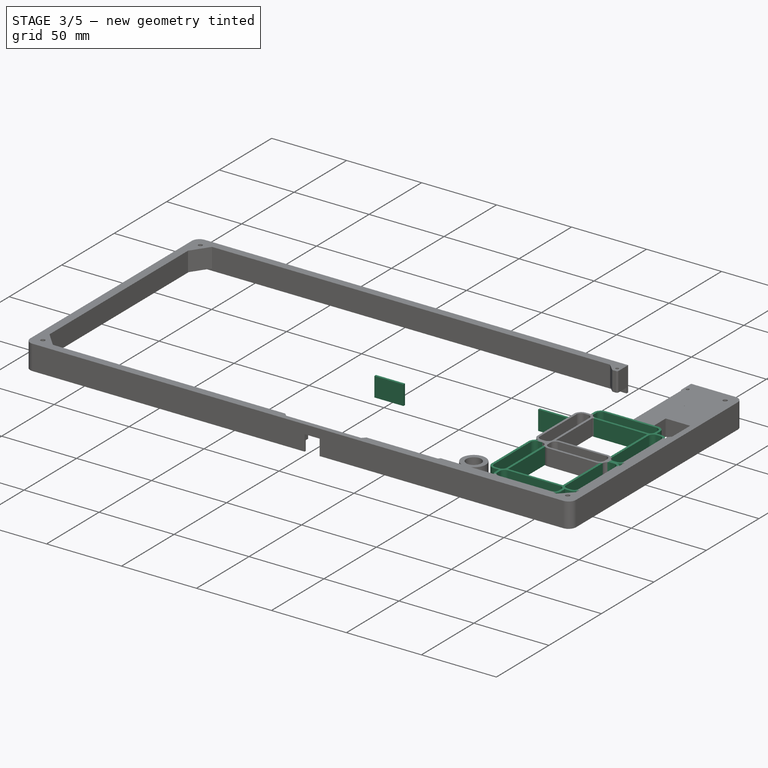
[diagram: stage 3 of 5 — iso view after this stage's code; geometry added in this stage tinted green]
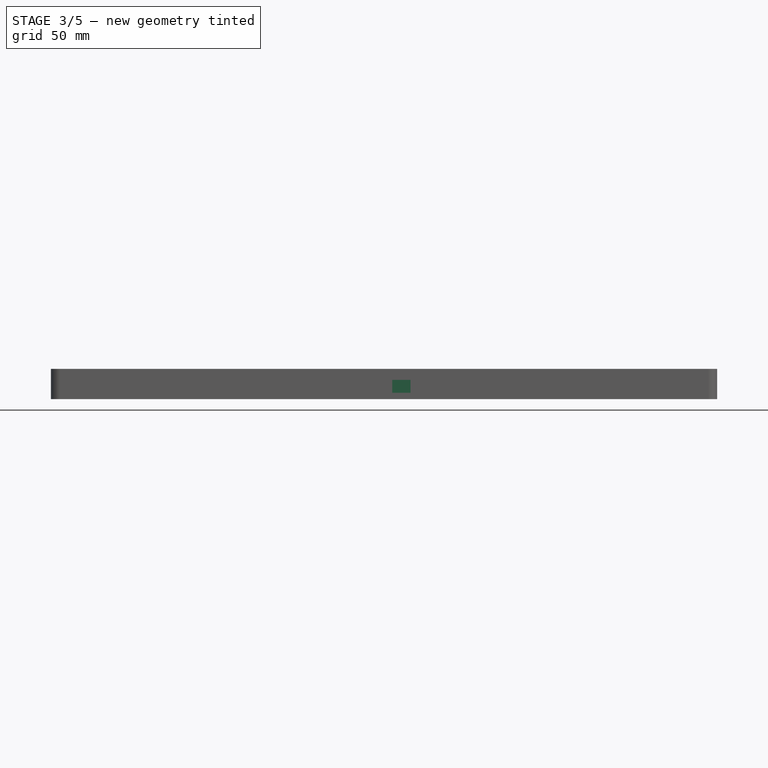
[diagram: stage 3 of 5 — front view after this stage's code; geometry added in this stage tinted green]
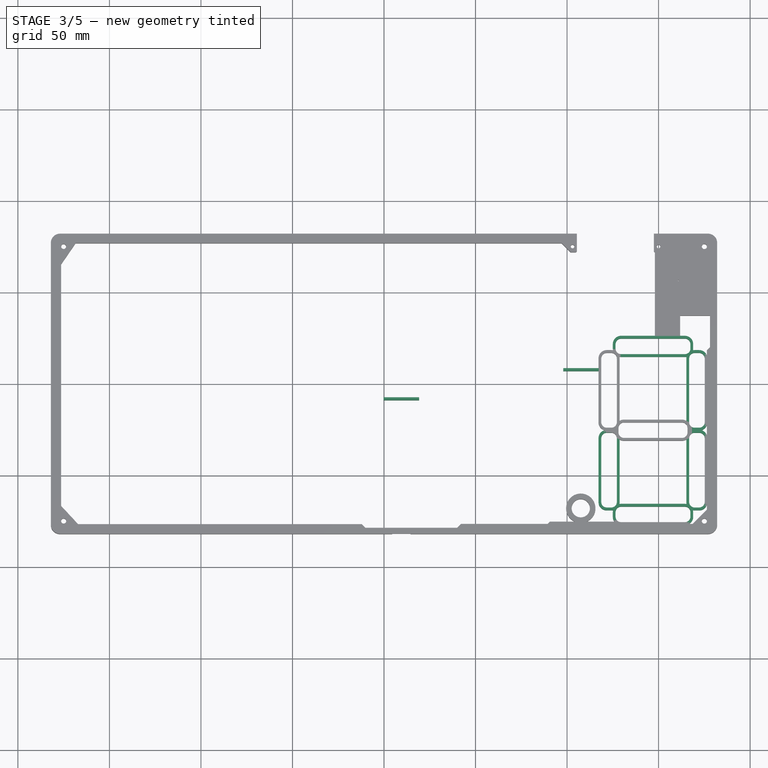
[diagram: stage 3 of 5 — top view after this stage's code; geometry added in this stage tinted green]
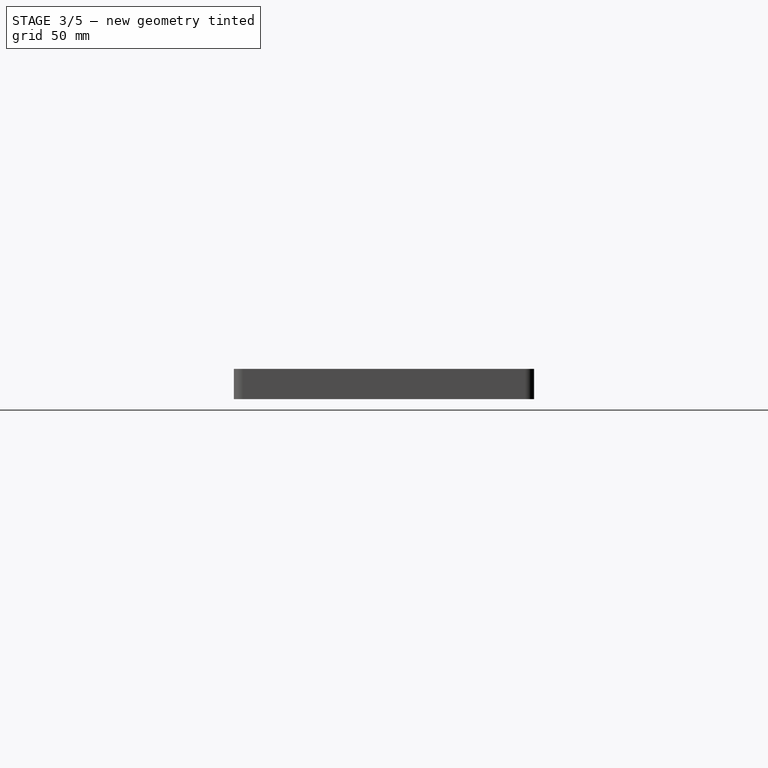
[diagram: stage 3 of 5 — right view after this stage's code; geometry added in this stage tinted green]
FEATURE [PartDesign::Body] Body018
  AllowCompound = false
  Group = -> [Sketch010,Pad008]
  Origin = -> Origin018
  Tip = -> Pad008
FEATURE [PartDesign::FeatureBase] Clone008
  BaseFeature = -> Body018
  Suppressed = false
FEATURE [PartDesign::Body] Body019
  AllowCompound = false
  Group = -> [Clone008]
  Origin = -> Origin019
  Placement = pos=(48,0,0) rot=(0,0,1;0rad)
  Tip = -> Clone008
FEATURE [PartDesign::FeatureBase] Clone009
  BaseFeature = -> Body019
  Placement = pos=(48,0,0) rot=(0,0,1;0rad)
  Suppressed = false
FEATURE [PartDesign::Body] Body020
  AllowCompound = false
  Group = -> [Clone009]
  Origin = -> Origin020
  Placement = pos=(143.4,-150.5,0) rot=(0,0,1;1.5708rad)
  Tip = -> Clone009
FEATURE [PartDesign::FeatureBase] Clone010
  BaseFeature = -> Body020
  Placement = pos=(143.4,-150.3,0) rot=(0,0,1;1.5708rad)
  Suppressed = false
FEATURE [PartDesign::Body] Body021
  AllowCompound = false
  Group = -> [Clone010]
  Origin = -> Origin021
  Placement = pos=(0,-92,0) rot=(0,0,1;0rad)
  Tip = -> Clone010
FEATURE [PartDesign::FeatureBase] Clone011
  BaseFeature = -> Body019
  Placement = pos=(48,0,0) rot=(0,0,1;0rad)
  Suppressed = false
FEATURE [PartDesign::Body] Body022
  AllowCompound = false
  Group = -> [Clone011]
  Origin = -> Origin022
  Placement = pos=(0,-43.6,0) rot=(0,0,1;0rad)
  Tip = -> Clone011
FEATURE [PartDesign::FeatureBase] Clone012
  BaseFeature = -> Body022
  Placement = pos=(0,-43.6,0) rot=(0,0,1;0rad)
  Suppressed = false
FEATURE [Sketcher::SketchObject] Sketch013
  ArcFitTolerance = 1e-06
  AttachmentOffset = pos=(0,0,13) rot=(0,0,1;0rad)
  AttachmentSupport = -> [XY_Plane028]
  FullyConstrained = true
  MakeInternals = false
  MapMode = 5
  Placement = pos=(0,0,13) rot=(0,0,1;0rad)
  sketch-geometry (4):
    g0: LineSegment StartX=105.4 StartY=38 StartZ=0 EndX=147.4 EndY=38 EndZ=0
    g1: LineSegment StartX=147.4 StartY=38 StartZ=0 EndX=147.4 EndY=83 EndZ=0
    g2: LineSegment StartX=147.4 StartY=83 StartZ=0 EndX=105.4 EndY=83 EndZ=0
    g3: LineSegment StartX=105.4 StartY=83 StartZ=0 EndX=105.4 EndY=38 EndZ=0
  constraints (12):
    c: Coincident(g0,g1)
    c: Coincident(g1,g2)
    c: Coincident(g2,g3)
    c: Coincident(g3,g0)
    c: Horizontal(g0)
    c: Horizontal(g2)
    c: Vertical(g1)
    c: Vertical(g3)
    c: DistanceX(g-1,g2) = 105.4
    c: DistanceX(g2,g1) = 42
    c: DistanceY(g0,g2) = 45
    c: DistanceY(g-1,g0) = 38
FEATURE [Sketcher::SketchObject] Sketch014
  ArcFitTolerance = 1e-06
  AttachmentOffset = pos=(0,0,3) rot=(0,0,1;0rad)
  AttachmentSupport = -> [XY_Plane028]
  FullyConstrained = true
  MakeInternals = false
  MapMode = 5
  Placement = pos=(0,0,3) rot=(0,0,1;0rad)
  sketch-geometry (4):
    g0: LineSegment StartX=-0.3 StartY=-77.2 StartZ=0 EndX=-0.3 EndY=-80.95 EndZ=0
    g1: LineSegment StartX=-0.3 StartY=-80.95 StartZ=0 EndX=19.2 EndY=-80.95 EndZ=0
    g2: LineSegment StartX=19.2 StartY=-80.95 StartZ=0 EndX=19.2 EndY=-77.2 EndZ=0
    g3: LineSegment StartX=19.2 StartY=-77.2 StartZ=0 EndX=-0.3 EndY=-77.2 EndZ=0
  constraints (12):
    c: Coincident(g0,g1)
    c: Coincident(g1,g2)
    c: Coincident(g2,g3)
    c: Coincident(g3,g0)
    c: Vertical(g0)
    c: Vertical(g2)
    c: Horizontal(g1)
    c: Horizontal(g3)
    c: DistanceY(g0,g0) = 3.75
    c: DistanceX(g0,g1) = 19.5
    c: DistanceY(g0,g-1) = 77.2
    c: DistanceX(g0,g-1) = 0.3
FEATURE [Sketcher::SketchObject] Sketch015
  ArcFitTolerance = 1e-06
  AttachmentSupport = -> [XY_Plane029]
  FullyConstrained = true
  MakeInternals = false
  MapMode = 5
  sketch-geometry (4):
    g0: LineSegment StartX=19.2 StartY=-7.6 StartZ=0 EndX=-0.2 EndY=-7.6 EndZ=0
    g1: LineSegment StartX=-0.2 StartY=-7.6 StartZ=0 EndX=-0.2 EndY=-9.1 EndZ=0
    g2: LineSegment StartX=-0.2 StartY=-9.1 StartZ=0 EndX=19.2 EndY=-9.1 EndZ=0
    g3: LineSegment StartX=19.2 StartY=-9.1 StartZ=0 EndX=19.2 EndY=-7.6 EndZ=0
  constraints (12):
    c: Coincident(g0,g1)
    c: Coincident(g1,g2)
    c: Coincident(g2,g3)
    c: Coincident(g3,g0)
    c: Horizontal(g0)
    c: Horizontal(g2)
    c: Vertical(g1)
    c: Vertical(g3)
    c: DistanceX(g0,g0) = 19.4
    c: DistanceY(g2,g0) = 1.5
    c: DistanceX(g0,g-1) = 0.2
    c: DistanceY(g0,g-1) = 7.6
FEATURE [PartDesign::Pad] Pad011
  Direction = (0,0,1)
  Length = 13
  Length2 = 10
  Profile = -> Sketch015
  ReferenceAxis = -> Sketch015 [N_Axis]
  Refine = true
  Suppressed = false
  Type = 0
FEATURE [PartDesign::Body] Body026
  AllowCompound = false
  Group = -> [Sketch015,Pad011]
  Origin = -> Origin026
  Placement = pos=(0,0.3,0) rot=(0,0,1;0rad)
  Tip = -> Pad011
FEATURE [PartDesign::FeatureBase] Clone013
  BaseFeature = -> Body026
  Placement = pos=(0,0.2,0) rot=(0,0,1;0rad)
  Suppressed = false
FEATURE [PartDesign::Body] Body029
  AllowCompound = false
  Group = -> [Clone015]
  Origin = -> Origin029
  Placement = pos=(-98,15.7,0) rot=(0,0,1;0rad)
  Tip = -> Clone015
FEATURE [PartDesign::FeatureBase] Clone016
  BaseFeature = -> Body026
  Placement = pos=(0,0.2,0) rot=(0,0,1;0rad)
  Suppressed = false
FEATURE [PartDesign::Body] Body030
  AllowCompound = false
  Group = -> [Clone016]
  Origin = -> Origin030
  Placement = pos=(98.1,0,0) rot=(0,0,1;0rad)
  Tip = -> Clone016
FEATURE [PartDesign::FeatureBase] Clone017
  BaseFeature = -> Body030
  Placement = pos=(98.1,0.2,0) rot=(0,0,1;0rad)
  Suppressed = false
FEATURE [PartDesign::Body] Body031
  AllowCompound = false
  Group = -> [Clone017]
  Origin = -> Origin031
  Placement = pos=(-2.8e-15,15.7,0) rot=(0,0,1;0rad)
  Tip = -> Clone017
FEATURE [PartDesign::FeatureBase] Clone018
  BaseFeature = -> Body031
  Placement = pos=(-2.8e-15,15.7,0) rot=(0,0,1;0rad)
  Suppressed = false
FEATURE [PartDesign::Body] Body034
  AllowCompound = false
  Group = -> [Clone019]
  Origin = -> Origin034
  Placement = pos=(41.5,0,0) rot=(0,0,1;0rad)
  Tip = -> Clone019
FEATURE [PartDesign::Boolean] Boolean001
  Group = -> [Body018,Body019,Body020,Body022,Body021,Body023,Body024,Body033,Body034]
  Refine = true
  Suppressed = false
  Type = 0
  UsePlacement = true
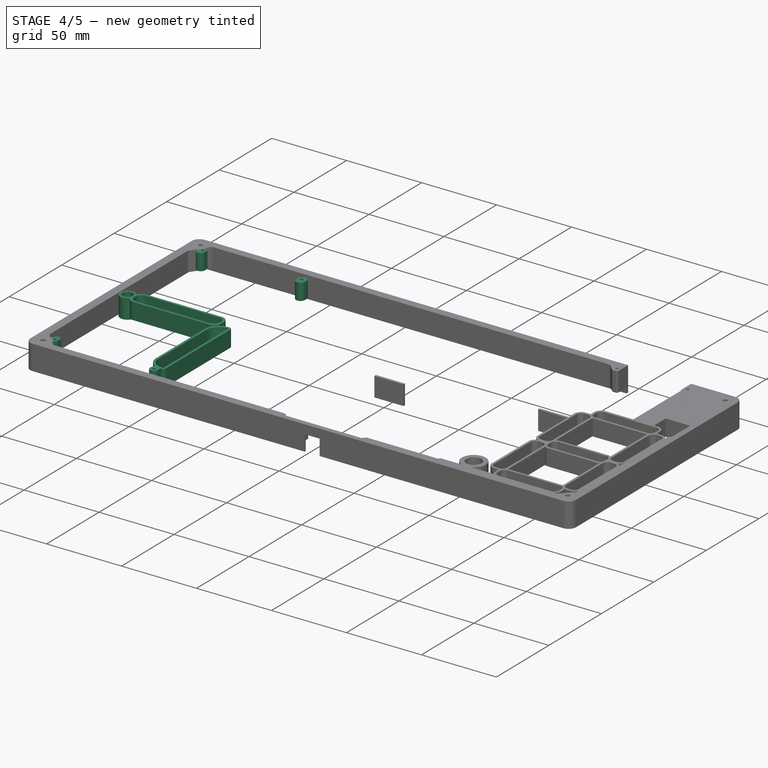
[diagram: stage 4 of 5 — iso view after this stage's code; geometry added in this stage tinted green]
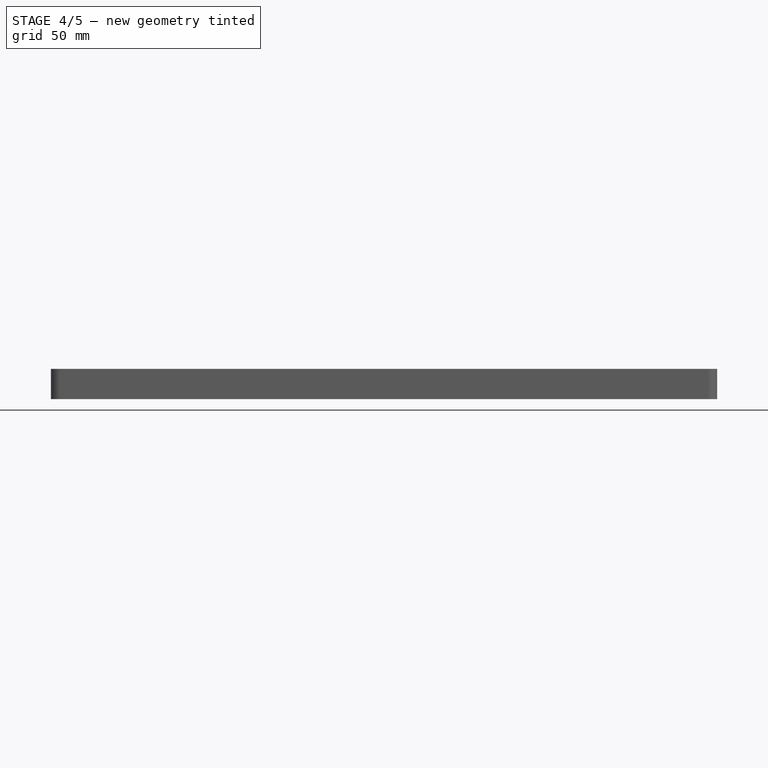
[diagram: stage 4 of 5 — front view after this stage's code; geometry added in this stage tinted green]
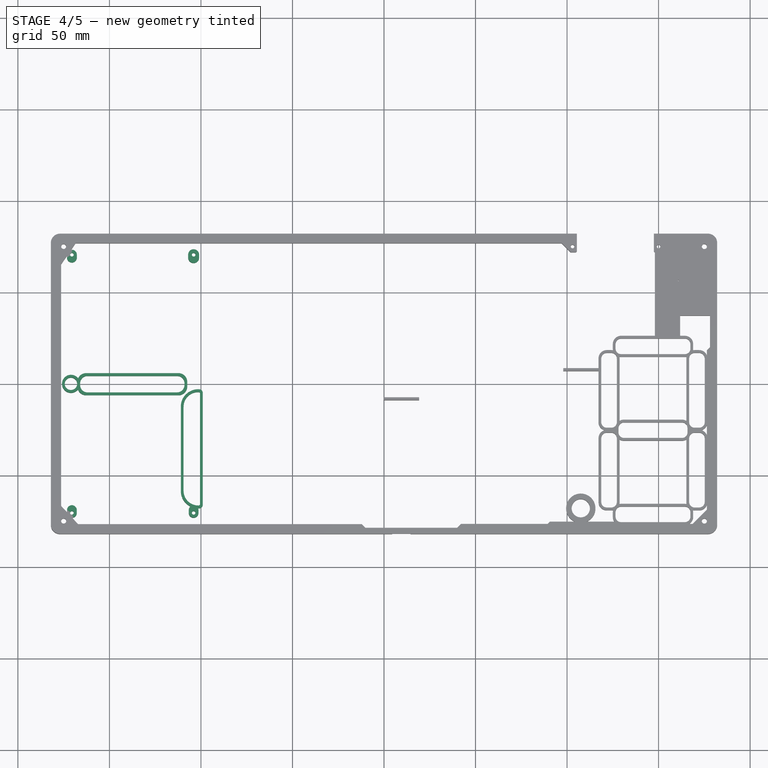
[diagram: stage 4 of 5 — top view after this stage's code; geometry added in this stage tinted green]
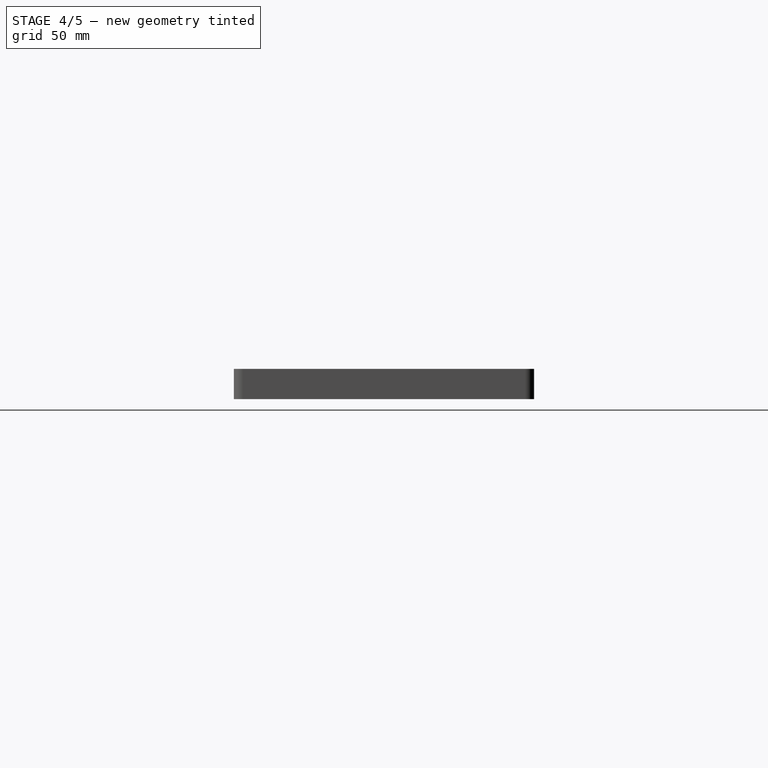
[diagram: stage 4 of 5 — right view after this stage's code; geometry added in this stage tinted green]
FEATURE [Image::ImagePlane] pcb_view
  Placement = pos=(0,0.3,0) rot=(0,0,1;0rad)
  XSize = 360
  YSize = 159.7
FEATURE [Sketcher::SketchObject] Sketch
  ArcFitTolerance = 1e-06
  AttachmentOffset = pos=(0,0,2) rot=(0,0,1;0rad)
  AttachmentSupport = -> [XY_Plane008]
  FullyConstrained = true
  MakeInternals = false
  MapMode = 5
  Placement = pos=(0,0,2) rot=(0,0,1;0rad)
  sketch-geometry (22):
    g0: LineSegment StartX=-174.8 StartY=4.5 StartZ=0 EndX=-174.5 EndY=4.5 EndZ=0
    g1: LineSegment StartX=-166.5 StartY=12.5 StartZ=0 EndX=-166.5 EndY=58.5 EndZ=0
    g2: LineSegment StartX=-174.5 StartY=66.5 StartZ=0 EndX=-174.8 EndY=66.5 EndZ=0
    g3: LineSegment StartX=-175.5 StartY=65.8 StartZ=0 EndX=-175.5 EndY=5.2 EndZ=0
    g4: ArcOfCircle CenterX=-174.5 CenterY=58.5 CenterZ=0 NormalX=0 NormalY=0 NormalZ=1 AngleXU=0 Radius=8 StartAngle=4e-16 EndAngle=1.5708
    g5: ArcOfCircle CenterX=-174.5 CenterY=12.5 CenterZ=0 NormalX=0 NormalY=0 NormalZ=1 AngleXU=0 Radius=8 StartAngle=4.71239 EndAngle=6.28319
    g6: GeomPoint [constr] X=-166.5 Y=4.5 Z=0
    g7: LineSegment StartX=-175 StartY=3 StartZ=0 EndX=-174.5 EndY=3 EndZ=0
    g8: LineSegment StartX=-165 StartY=12.5 StartZ=0 EndX=-165 EndY=58.5 EndZ=0
    g9: LineSegment StartX=-174.5 StartY=68 StartZ=0 EndX=-175 EndY=68 EndZ=0
    g10: LineSegment StartX=-177 StartY=66 StartZ=0 EndX=-177 EndY=5 EndZ=0
    g11: ArcOfCircle CenterX=-174.5 CenterY=58.5 CenterZ=0 NormalX=0 NormalY=0 NormalZ=1 AngleXU=0 Radius=9.5 StartAngle=1e-15 EndAngle=1.5708
    g12: ArcOfCircle CenterX=-174.5 CenterY=12.5 CenterZ=0 NormalX=0 NormalY=0 NormalZ=1 AngleXU=0 Radius=9.5 StartAngle=4.71239 EndAngle=6.28319
    g13: GeomPoint [constr] X=-165 Y=3 Z=0
    g14: ArcOfCircle CenterX=-175 CenterY=66 CenterZ=0 NormalX=0 NormalY=0 NormalZ=1 AngleXU=0 Radius=2 StartAngle=1.5708 EndAngle=3.14159
    g15: GeomPoint [constr] X=-177 Y=68 Z=0
    g16: ArcOfCircle CenterX=-175 CenterY=5 CenterZ=0 NormalX=0 NormalY=0 NormalZ=1 AngleXU=0 Radius=2 StartAngle=3.14159 EndAngle=4.71239
    g17: GeomPoint [constr] X=-177 Y=3 Z=0
    g18: ArcOfCircle CenterX=-174.8 CenterY=5.2 CenterZ=0 NormalX=0 NormalY=0 NormalZ=1 AngleXU=0 Radius=0.7 StartAngle=3.14159 EndAngle=4.71239
    g19: GeomPoint [constr] X=-175.5 Y=4.5 Z=0
    g20: ArcOfCircle CenterX=-174.8 CenterY=65.8 CenterZ=0 NormalX=0 NormalY=0 NormalZ=1 AngleXU=0 Radius=0.7 StartAngle=1.5708 EndAngle=3.14159
    g21: GeomPoint [constr] X=-175.5 Y=66.5 Z=0
  constraints (52):
    c: Tangent(g2,g4) = -1.5708
    c: Tangent(g1,g4) = -1.5708
    c: PointOnObject(g6,g0)
    c: PointOnObject(g6,g1)
    c: Tangent(g0,g5) = -1.5708
    c: Tangent(g1,g5) = -1.5708
    c: Tangent(g8,g11) = -1.5708
    c: Tangent(g9,g11) = -1.5708
    c: PointOnObject(g13,g7)
    c: PointOnObject(g13,g8)
    c: Tangent(g7,g12) = -1.5708
    c: Tangent(g8,g12) = -1.5708
    c: DistanceX(g21,g1) = 9
    c: DistanceX(g15,g8) = 12
    c: Radius(g4) = 8
    c: Radius(g11) = 9.5
    c: Radius(g5) = 8
    c: Radius(g12) = 9.5
    c: DistanceX(g17,g19) = 1.5
    c: DistanceX(g15,g9) = 2.5
    c: DistanceX(g19,g7) = 1
    c: DistanceX(g19,g0) = 1
    c: DistanceX(g1,g8) = 1.5
    c: DistanceX(g1,g8) = 1.5
    c: DistanceY(g2,g15) = 1.5
    c: DistanceX(g15,g-1) = 177
    c: DistanceY(g-1,g15) = 68
    c: PointOnObject(g15,g9)
    c: PointOnObject(g15,g10)
    c: Tangent(g9,g14) = -1.5708
    c: Tangent(g10,g14) = -1.5708
    c: Radius(g14) = 2
    c: PointOnObject(g17,g10)
    c: PointOnObject(g17,g7)
    c: Tangent(g10,g16) = -1.5708
    c: Tangent(g7,g16) = -1.5708
    c: Radius(g16) = 2
    c: DistanceX(g10,g1) = 10.5
    c: DistanceY(g0,g2) = 62
    c: DistanceY(g7,g9) = 65
    c: PointOnObject(g19,g3)
    c: PointOnObject(g19,g0)
    c: Tangent(g3,g18) = -1.5708
    c: Tangent(g0,g18) = -1.5708
    c: Radius(g18) = 0.7
    c: PointOnObject(g21,g3)
    c: PointOnObject(g21,g2)
    c: Tangent(g3,g20) = -1.5708
    c: Tangent(g2,g20) = -1.5708
    c: Radius(g20) = 0.7
    c: DistanceX(g10,g3) = 1.5
    c: DistanceY(g18,g20) = 60.6
FEATURE [PartDesign::Pad] Pad
  Direction = (0,0,1)
  Length = 11
  Length2 = 10
  Profile = -> Sketch
  ReferenceAxis = -> Sketch [N_Axis]
  Refine = true
  Suppressed = false
  Type = 0
FEATURE [PartDesign::Body] Body002
  AllowCompound = false
  Group = -> [Clone001]
  Origin = -> Origin002
  Placement = pos=(0,-71,0) rot=(0,0,1;0rad)
  Tip = -> Clone001
FEATURE [PartDesign::FeatureBase] Clone002
  BaseFeature = -> Pad
  Placement = pos=(-276,4.15e-14,0) rot=(0,0,1;3.14159rad)
  Suppressed = false
FEATURE [PartDesign::Body] Body005
  AllowCompound = false
  Group = -> [Clone004]
  Origin = -> Origin005
  Placement = pos=(0,70.9,0) rot=(0,0,1;0rad)
  Tip = -> Clone004
FEATURE [Sketcher::SketchObject] Sketch001
  ArcFitTolerance = 1e-06
  AttachmentOffset = pos=(0,0,2) rot=(0,0,1;0rad)
  AttachmentSupport = -> [XY_Plane007]
  FullyConstrained = true
  MakeInternals = false
  MapMode = 5
  Placement = pos=(0,0,2) rot=(0,0,1;0rad)
  sketch-geometry (24):
    g0: LineSegment StartX=-166 StartY=0.3 StartZ=0 EndX=-166 EndY=-0.7 EndZ=0
    g1: LineSegment StartX=-162 StartY=-4.7 StartZ=0 EndX=-113 EndY=-4.7 EndZ=0
    g2: LineSegment StartX=-109 StartY=-0.7 StartZ=0 EndX=-109 EndY=0.3 EndZ=0
    g3: LineSegment StartX=-113 StartY=4.3 StartZ=0 EndX=-162 EndY=4.3 EndZ=0
    g4: ArcOfCircle CenterX=-162 CenterY=0.3 CenterZ=0 NormalX=0 NormalY=0 NormalZ=1 AngleXU=0 Radius=4 StartAngle=1.5708 EndAngle=3.14159
    g5: GeomPoint [constr] X=-166 Y=4.3 Z=0
    g6: ArcOfCircle CenterX=-162 CenterY=-0.7 CenterZ=0 NormalX=0 NormalY=0 NormalZ=1 AngleXU=0 Radius=4 StartAngle=3.14159 EndAngle=4.71239
    g7: GeomPoint [constr] X=-166 Y=-4.7 Z=0
    g8: ArcOfCircle CenterX=-113 CenterY=0.3 CenterZ=0 NormalX=0 NormalY=0 NormalZ=1 AngleXU=0 Radius=4 StartAngle=0 EndAngle=1.5708
    g9: GeomPoint [constr] X=-109 Y=4.3 Z=0
    g10: ArcOfCircle CenterX=-113 CenterY=-0.7 CenterZ=0 NormalX=0 NormalY=0 NormalZ=1 AngleXU=0 Radius=4 StartAngle=4.71239 EndAngle=6.28319
    g11: GeomPoint [constr] X=-109 Y=-4.7 Z=0
    g12: LineSegment StartX=-167.5 StartY=1.05 StartZ=0 EndX=-167.5 EndY=-1.45 EndZ=0
    g13: LineSegment StartX=-162.75 StartY=-6.2 StartZ=0 EndX=-112.25 EndY=-6.2 EndZ=0
    g14: LineSegment StartX=-107.5 StartY=-1.45 StartZ=0 EndX=-107.5 EndY=1.05 EndZ=0
    g15: LineSegment StartX=-112.25 StartY=5.8 StartZ=0 EndX=-162.75 EndY=5.8 EndZ=0
    g16: ArcOfCircle CenterX=-162.75 CenterY=1.05 CenterZ=0 NormalX=0 NormalY=0 NormalZ=1 AngleXU=0 Radius=4.75 StartAngle=1.5708 EndAngle=3.14159
    g17: GeomPoint [constr] X=-167.5 Y=5.8 Z=0
    g18: ArcOfCircle CenterX=-162.75 CenterY=-1.45 CenterZ=0 NormalX=0 NormalY=0 NormalZ=1 AngleXU=0 Radius=4.75 StartAngle=3.14159 EndAngle=4.71239
    g19: GeomPoint [constr] X=-167.5 Y=-6.2 Z=0
    g20: ArcOfCircle CenterX=-112.25 CenterY=-1.45 CenterZ=0 NormalX=0 NormalY=0 NormalZ=1 AngleXU=0 Radius=4.75 StartAngle=4.71239 EndAngle=6.28319
    g21: GeomPoint [constr] X=-107.5 Y=-6.2 Z=0
    g22: ArcOfCircle CenterX=-112.25 CenterY=1.05 CenterZ=0 NormalX=0 NormalY=0 NormalZ=1 AngleXU=0 Radius=4.75 StartAngle=0 EndAngle=1.5708
    g23: GeomPoint [constr] X=-107.5 Y=5.8 Z=0
  constraints (56):
    c: Vertical(g0)
    c: Vertical(g2)
    c: Horizontal(g1)
    c: Horizontal(g3)
    c: DistanceX(g5,g9) = 57
    c: DistanceY(g11,g9) = 9
    c: PointOnObject(g5,g0)
    c: PointOnObject(g5,g3)
    c: Tangent(g0,g4) = -1.5708
    c: Tangent(g3,g4) = -1.5708
    c: Radius(g4) = 4
    c: PointOnObject(g7,g0)
    c: PointOnObject(g7,g1)
    c: Tangent(g0,g6) = -1.5708
    c: Tangent(g1,g6) = -1.5708
    c: Radius(g6) = 4
    c: PointOnObject(g9,g3)
    c: PointOnObject(g9,g2)
    c: Tangent(g3,g8) = -1.5708
    c: Tangent(g2,g8) = -1.5708
    c: Radius(g8) = 4
    c: PointOnObject(g11,g2)
    c: PointOnObject(g11,g1)
    c: Tangent(g2,g10) = -1.5708
    c: Tangent(g1,g10) = -1.5708
    c: Radius(g10) = 4
    c: DistanceX(g1,g-1) = 113
    c: Vertical(g12)
    c: Vertical(g14)
    c: Horizontal(g13)
    c: Horizontal(g15)
    c: DistanceY(g19,g17) = 12
    c: DistanceY(g3,g17) = 1.5
    c: DistanceX(g2,g23) = 1.5
    c: PointOnObject(g17,g12)
    c: PointOnObject(g17,g15)
    c: Tangent(g12,g16) = -1.5708
    c: Tangent(g15,g16) = -1.5708
    c: Radius(g16) = 4.75
    c: DistanceX(g12,g0) = 1.5
    c: PointOnObject(g19,g12)
    c: PointOnObject(g19,g13)
    c: Tangent(g12,g18) = -1.5708
    c: Tangent(g13,g18) = -1.5708
    c: Radius(g18) = 4.75
    c: PointOnObject(g21,g14)
    c: PointOnObject(g21,g13)
    c: Tangent(g14,g20) = -1.5708
    c: Tangent(g13,g20) = -1.5708
    c: Radius(g20) = 4.75
    c: PointOnObject(g23,g15)
    c: PointOnObject(g23,g14)
    c: Tangent(g15,g22) = -1.5708
    c: Tangent(g14,g22) = -1.5708
    c: Radius(g22) = 4.75
    c: DistanceY(g1,g-1) = 4.7
FEATURE [PartDesign::Pad] Pad001
  Direction = (0,0,1)
  Length = 11
  Length2 = 10
  Profile = -> Sketch001
  ReferenceAxis = -> Sketch001 [N_Axis]
  Refine = true
  Suppressed = false
  Type = 0
FEATURE [PartDesign::Body] Body006
  AllowCompound = false
  Group = -> [Sketch001,Pad001]
  Origin = -> Origin006
  Placement = pos=(0,0.2,0) rot=(0,0,1;0rad)
  Tip = -> Pad001
FEATURE [PartDesign::Body] Body007
  AllowCompound = false
  Group = -> [Sketch,Pad]
  Origin = -> Origin007
  Tip = -> Pad
FEATURE [Sketcher::SketchObject] Sketch002
  ArcFitTolerance = 1e-06
  AttachmentSupport = -> [XY_Plane009]
  FullyConstrained = true
  MakeInternals = false
  MapMode = 5
  sketch-geometry (2):
    g0: Circle CenterX=-171.03 CenterY=0 CenterZ=0 NormalX=0 NormalY=0 NormalZ=1 AngleXU=0 Radius=3.4
    g1: Circle CenterX=-171 CenterY=0 CenterZ=0 NormalX=0 NormalY=0 NormalZ=1 AngleXU=0 Radius=4.9
  constraints (6):
    c: Radius(g0) = 3.4
    c: DistanceY(g0,g-1) = 0
    c: DistanceX(g0,g-1) = 171.03
    c: Radius(g1) = 4.9
    c: DistanceX(g1,g-1) = 171
    c: DistanceY(g1,g0) = 0
FEATURE [PartDesign::Pad] Pad002
  Direction = (0,0,1)
  Length = 13
  Length2 = 10
  Profile = -> Sketch002
  ReferenceAxis = -> Sketch002 [N_Axis]
  Refine = true
  Suppressed = false
  Type = 0
FEATURE [PartDesign::Body] Body008
  AllowCompound = false
  Group = -> [Sketch002,Pad002]
  Origin = -> Origin008
  Tip = -> Pad002
FEATURE [PartDesign::FeatureBase] Clone005
  BaseFeature = -> Body008
  Suppressed = false
FEATURE [PartDesign::Body] Body009
  AllowCompound = false
  Group = -> [Clone005]
  Origin = -> Origin009
  Placement = pos=(67.1,0,0) rot=(0,0,1;0rad)
  Tip = -> Clone005
FEATURE [Sketcher::SketchObject] Sketch004
  ArcFitTolerance = 1e-06
  AttachmentOffset = pos=(0,0,2) rot=(0,0,1;0rad)
  AttachmentSupport = -> [XY_Plane013]
  FullyConstrained = true
  MakeInternals = false
  MapMode = 5
  Placement = pos=(0,0,2) rot=(0,0,1;0rad)
  sketch-geometry (5):
    g0: Circle CenterX=-170.5 CenterY=70.5 CenterZ=0 NormalX=0 NormalY=0 NormalZ=1 AngleXU=0 Radius=1
    g1: ArcOfCircle CenterX=-170.5 CenterY=70.5 CenterZ=0 NormalX=0 NormalY=0 NormalZ=1 AngleXU=0 Radius=2.7 StartAngle=0 EndAngle=3.14159
    g2: ArcOfCircle CenterX=-170.5 CenterY=69 CenterZ=0 NormalX=0 NormalY=0 NormalZ=1 AngleXU=0 Radius=2.7 StartAngle=3.14159 EndAngle=6.28319
    g3: LineSegment StartX=-167.8 StartY=70.5 StartZ=0 EndX=-167.8 EndY=69 EndZ=0
    g4: LineSegment StartX=-173.2 StartY=70.5 StartZ=0 EndX=-173.2 EndY=69 EndZ=0
  constraints (12):
    c: Radius(g0) = 1
    c: DistanceX(g0,g-1) = 170.5
    c: DistanceY(g-1,g0) = 70.5
    c: Tangent(g1,g3) = 1.5708
    c: Tangent(g1,g4) = -1.5708
    c: Tangent(g2,g3) = 1.5708
    c: Tangent(g2,g4) = -1.5708
    c: Equal(g1,g2)
    c: Vertical(g4)
    c: Distance(g1,g2) = 1.5
    c: Radius(g1) = 2.7
    c: Coincident(g1,g0)
FEATURE [PartDesign::Pad] Pad003
  Direction = (0,0,1)
  Length = 11
  Length2 = 10
  Profile = -> Sketch004
  ReferenceAxis = -> Sketch004 [N_Axis]
  Refine = true
  Suppressed = false
  Type = 0
FEATURE [PartDesign::Body] Body010
  AllowCompound = false
  Group = -> [Sketch004,Pad003]
  Origin = -> Origin010
  Tip = -> Pad003
FEATURE [Sketcher::SketchObject] Sketch005
  ArcFitTolerance = 1e-06
  AttachmentOffset = pos=(0,0,2) rot=(0,0,1;0rad)
  AttachmentSupport = -> [XY_Plane014]
  FullyConstrained = true
  MakeInternals = false
  MapMode = 5
  Placement = pos=(0,0,2) rot=(0,0,1;0rad)
  sketch-geometry (5):
    g0: Circle CenterX=-104 CenterY=70.5 CenterZ=0 NormalX=0 NormalY=0 NormalZ=1 AngleXU=0 Radius=1
    g1: ArcOfCircle CenterX=-104 CenterY=70.5 CenterZ=0 NormalX=0 NormalY=0 NormalZ=1 AngleXU=0 Radius=3 StartAngle=3e-16 EndAngle=3.14159
    g2: ArcOfCircle CenterX=-104 CenterY=69 CenterZ=0 NormalX=0 NormalY=0 NormalZ=1 AngleXU=0 Radius=3 StartAngle=3.14159 EndAngle=6.28319
    g3: LineSegment StartX=-101 StartY=70.5 StartZ=0 EndX=-101 EndY=69 EndZ=0
    g4: LineSegment StartX=-107 StartY=70.5 StartZ=0 EndX=-107 EndY=69 EndZ=0
  constraints (12):
    c: Radius(g0) = 1
    c: DistanceX(g0,g-1) = 104
    c: DistanceY(g-1,g0) = 70.5
    c: Tangent(g1,g3) = 1.5708
    c: Tangent(g1,g4) = -1.5708
    c: Tangent(g2,g3) = 1.5708
    c: Tangent(g2,g4) = -1.5708
    c: Equal(g1,g2)
    c: Vertical(g4)
    c: Distance(g1,g2) = 1.5
    c: Coincident(g1,g0)
    c: Radius(g1) = 3
FEATURE [PartDesign::Pad] Pad004
  Direction = (0,0,1)
  Length = 11
  Length2 = 10
  Profile = -> Sketch005
  ReferenceAxis = -> Sketch005 [N_Axis]
  Refine = true
  Suppressed = false
  Type = 0
FEATURE [PartDesign::Body] Body011
  AllowCompound = false
  Group = -> [Sketch005,Pad004]
  Origin = -> Origin011
  Tip = -> Pad004
FEATURE [Sketcher::SketchObject] Sketch006
  ArcFitTolerance = 1e-06
  AttachmentSupport = -> [XY_Plane015]
  FullyConstrained = true
  MakeInternals = false
  MapMode = 5
  sketch-geometry (5):
    g0: Circle CenterX=-104 CenterY=-70.5 CenterZ=0 NormalX=0 NormalY=0 NormalZ=1 AngleXU=0 Radius=1
    g1: ArcOfCircle CenterX=-104 CenterY=-70.5 CenterZ=0 NormalX=0 NormalY=0 NormalZ=1 AngleXU=0 Radius=2.65 StartAngle=3.14159 EndAngle=6.28319
    g2: ArcOfCircle CenterX=-104 CenterY=-69 CenterZ=0 NormalX=0 NormalY=0 NormalZ=1 AngleXU=0 Radius=2.65 StartAngle=0 EndAngle=3.14159
    g3: LineSegment StartX=-106.65 StartY=-70.5 StartZ=0 EndX=-106.65 EndY=-69 EndZ=0
    g4: LineSegment StartX=-101.35 StartY=-70.5 StartZ=0 EndX=-101.35 EndY=-69 EndZ=0
  constraints (12):
    c: Radius(g0) = 1
    c: DistanceX(g0,g-1) = 104
    c: DistanceY(g-1,g0) = -70.5
    c: Tangent(g1,g3) = 1.5708
    c: Tangent(g1,g4) = -1.5708
    c: Tangent(g2,g3) = 1.5708
    c: Tangent(g2,g4) = -1.5708
    c: Equal(g1,g2)
    c: Vertical(g4)
    c: Distance(g1,g2) = 1.5
    c: Radius(g1) = 2.65
    c: Coincident(g1,g0)
FEATURE [Sketcher::SketchObject] Sketch007
  ArcFitTolerance = 1e-06
  AttachmentSupport = -> [XY_Plane016]
  FullyConstrained = true
  MakeInternals = false
  MapMode = 5
  sketch-geometry (5):
    g0: Circle CenterX=-170.5 CenterY=-70.5 CenterZ=0 NormalX=0 NormalY=0 NormalZ=1 AngleXU=0 Radius=1
    g1: ArcOfCircle CenterX=-170.5 CenterY=-70.5 CenterZ=0 NormalX=0 NormalY=0 NormalZ=1 AngleXU=0 Radius=2.65 StartAngle=3.14159 EndAngle=6.28319
    g2: ArcOfCircle CenterX=-170.5 CenterY=-69 CenterZ=0 NormalX=0 NormalY=0 NormalZ=1 AngleXU=0 Radius=2.65 StartAngle=0 EndAngle=3.14159
    g3: LineSegment StartX=-173.15 StartY=-70.5 StartZ=0 EndX=-173.15 EndY=-69 EndZ=0
    g4: LineSegment StartX=-167.85 StartY=-70.5 StartZ=0 EndX=-167.85 EndY=-69 EndZ=0
  constraints (12):
    c: Radius(g0) = 1
    c: DistanceX(g0,g-1) = 170.5
    c: DistanceY(g-1,g0) = -70.5
    c: Tangent(g1,g3) = 1.5708
    c: Tangent(g1,g4) = -1.5708
    c: Tangent(g2,g3) = 1.5708
    c: Tangent(g2,g4) = -1.5708
    c: Equal(g1,g2)
    c: Vertical(g4)
    c: Distance(g1,g2) = 1.5
    c: Radius(g1) = 2.65
    c: Coincident(g1,g0)
FEATURE [PartDesign::Pad] Pad005
  Direction = (0,0,1)
  Length = 13
  Length2 = 10
  Profile = -> Sketch006
  ReferenceAxis = -> Sketch006 [N_Axis]
  Refine = true
  Suppressed = false
  Type = 0
FEATURE [PartDesign::Body] Body012
  AllowCompound = false
  Group = -> [Sketch006,Pad005]
  Origin = -> Origin012
  Tip = -> Pad005
FEATURE [PartDesign::Pad] Pad006
  Direction = (0,0,1)
  Length = 13
  Length2 = 10
  Profile = -> Sketch007
  ReferenceAxis = -> Sketch007 [N_Axis]
  Refine = true
  Suppressed = false
  Type = 0
FEATURE [PartDesign::Body] Body027
  AllowCompound = false
  Group = -> [Clone013]
  Origin = -> Origin027
  Placement = pos=(0,15.7,0) rot=(0,0,1;0rad)
  Tip = -> Clone013
FEATURE [PartDesign::FeatureBase] Clone014
  BaseFeature = -> Clone013
  Placement = pos=(0,0.2,0) rot=(0,0,1;0rad)
  Suppressed = false
FEATURE [PartDesign::Body] Body028
  AllowCompound = false
  Group = -> [Clone014]
  Origin = -> Origin028
  Placement = pos=(-98,0,0) rot=(0,0,1;0rad)
  Tip = -> Clone014
FEATURE [PartDesign::FeatureBase] Clone015
  BaseFeature = -> Clone014
  Placement = pos=(0,0.2,0) rot=(0,0,1;0rad)
  Suppressed = false
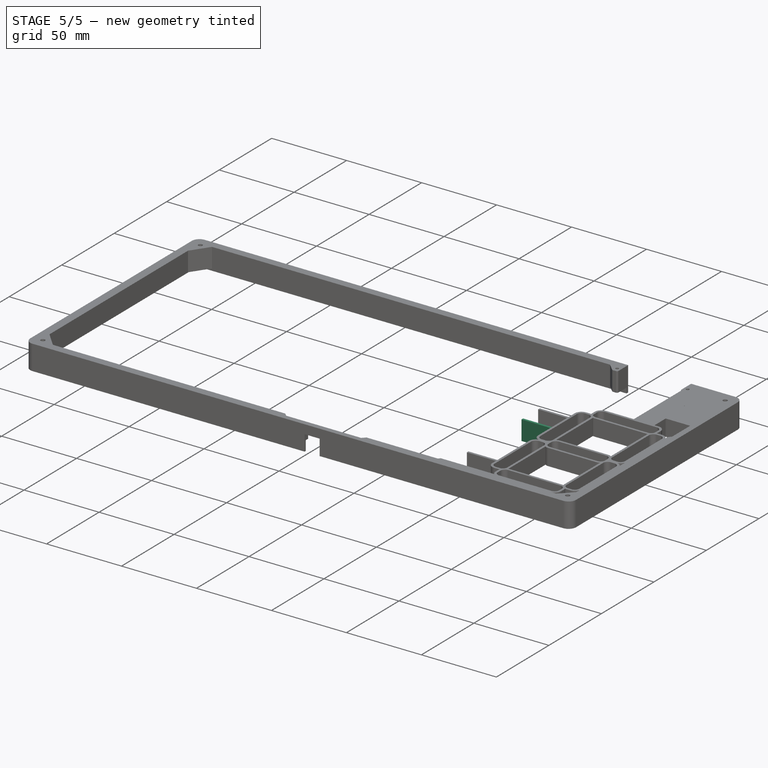
[diagram: stage 5 of 5 — iso view after this stage's code; geometry added in this stage tinted green]
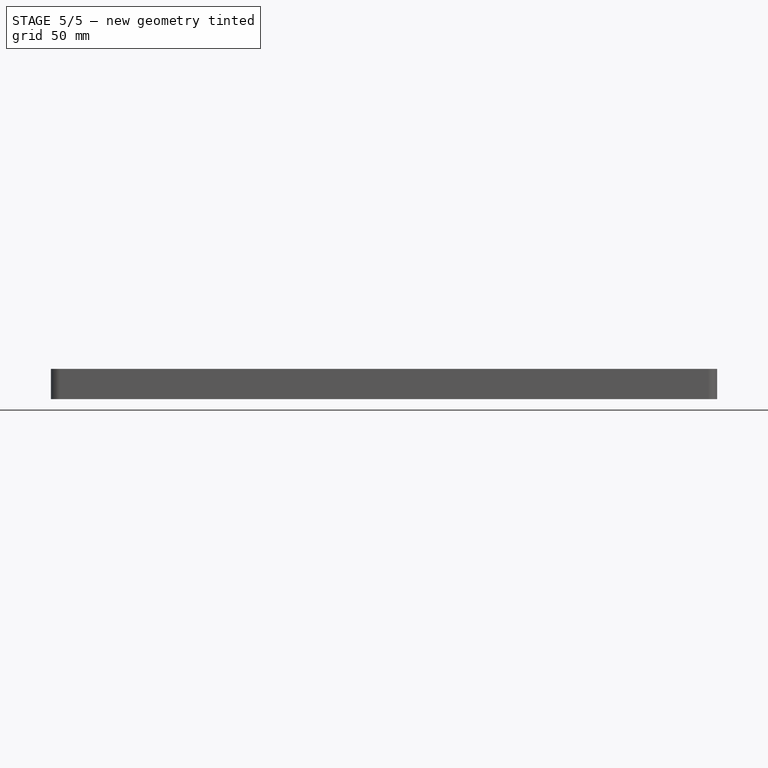
[diagram: stage 5 of 5 — front view after this stage's code; geometry added in this stage tinted green]
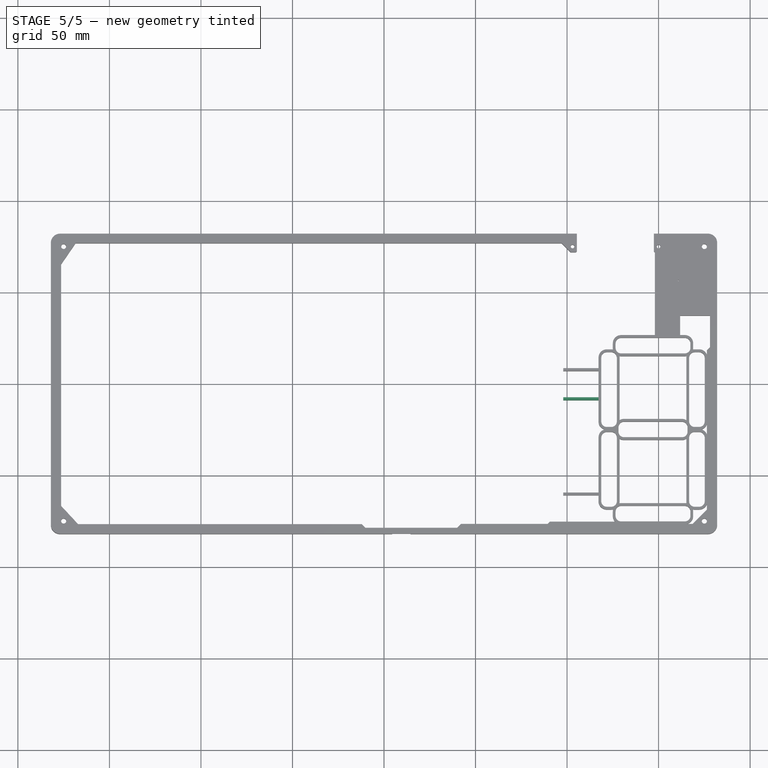
[diagram: stage 5 of 5 — top view after this stage's code; geometry added in this stage tinted green]
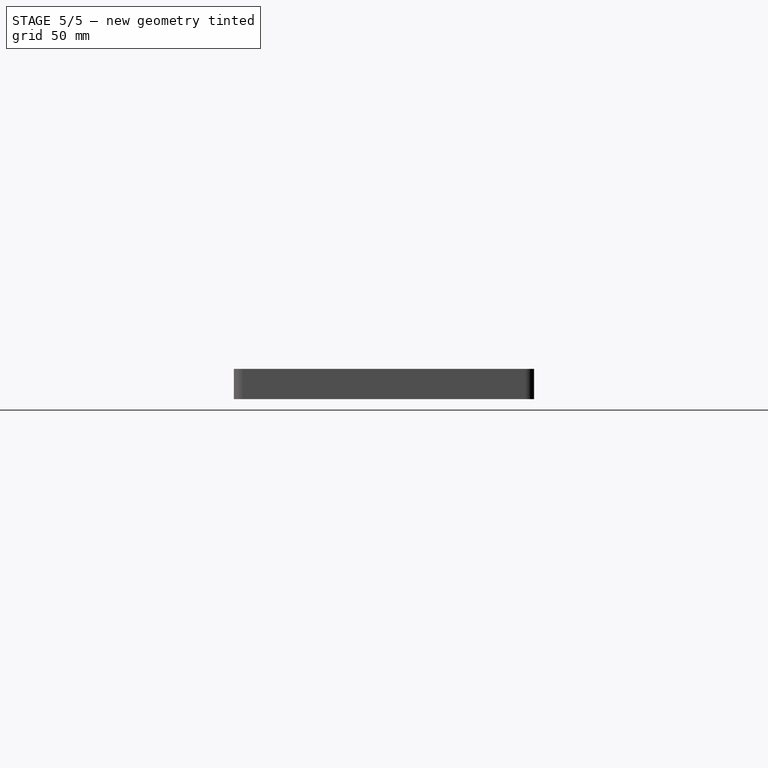
[diagram: stage 5 of 5 — right view after this stage's code; geometry added in this stage tinted green]
FEATURE [PartDesign::Body] Body
  AllowCompound = false
  Origin = -> Origin
  Tip = -> Pad
FEATURE [PartDesign::FeatureBase] Clone
  BaseFeature = -> Pad
  Suppressed = false
FEATURE [PartDesign::Body] Body001
  AllowCompound = false
  Group = -> [Clone]
  Origin = -> Origin001
  Placement = pos=(-173,-100,0) rot=(0,0,1;4.71239rad)
  Tip = -> Clone
FEATURE [PartDesign::FeatureBase] Clone001
  BaseFeature = -> Body
  Suppressed = false
FEATURE [PartDesign::Body] Body003
  AllowCompound = false
  Group = -> [Clone002]
  Origin = -> Origin003
  Placement = pos=(1,0,0) rot=(0,0,1;0rad)
  Tip = -> Clone002
FEATURE [PartDesign::FeatureBase] Clone003
  BaseFeature = -> Body001
  Placement = pos=(-173,-100.4,0) rot=(0,0,1;4.71239rad)
  Suppressed = false
FEATURE [PartDesign::Body] Body004
  AllowCompound = false
  Group = -> [Clone003]
  Origin = -> Origin004
  Placement = pos=(-275.1,-0.4,0) rot=(0,0,1;3.14159rad)
  Tip = -> Clone003
FEATURE [PartDesign::FeatureBase] Clone004
  BaseFeature = -> Body003
  Placement = pos=(1,0,0) rot=(0,0,1;0rad)
  Suppressed = false
FEATURE [PartDesign::Body] Body013
  AllowCompound = false
  Group = -> [Sketch007,Pad006]
  Origin = -> Origin013
  Tip = -> Pad006
FEATURE [PartDesign::Boolean] Boolean
  Group = -> [Body013,Body012,Body011,Body010,Body008,Body009,Body007,Body006,Body005,Body004,Body003,Body002,Body001]
  Refine = true
  Suppressed = false
  Type = 0
  UsePlacement = true
FEATURE [PartDesign::Body] Body014
  AllowCompound = false
  Group = -> [Boolean]
  Origin = -> Origin014
  Tip = -> Boolean
FEATURE [PartDesign::FeatureBase] Clone006
  BaseFeature = -> Body014
  Suppressed = false
FEATURE [PartDesign::Body] Body015
  AllowCompound = false
  Group = -> [Clone006]
  Origin = -> Origin015
  Placement = pos=(98,0,0) rot=(0,0,1;0rad)
  Tip = -> Clone006
FEATURE [PartDesign::FeatureBase] Clone007
  BaseFeature = -> Body014
  Suppressed = false
FEATURE [PartDesign::Body] Body017
  AllowCompound = false
  Group = -> [Sketch009,Pad007,Sketch029,Pocket010]
  Origin = -> Origin017
  Tip = -> Pocket010
FEATURE [PartDesign::Boolean] Boolean002
  Group = -> [Body014,Body015,Body016,Body017,Body025,Body027,Body026,Body028,Body029,Body030,Body031,Body032,Body035]
  Refine = true
  Suppressed = false
  Type = 0
  UsePlacement = true
FEATURE [PartDesign::Fillet] Fillet003
  Base = -> Boolean002 [Edge593]
  BaseFeature = -> Boolean002
  Radius = 1
  Refine = true
  SupportTransform = false
  Suppressed = false
  UseAllEdges = false
FEATURE [PartDesign::Fillet] Fillet004
  Base = -> Fillet003 [Edge75]
  BaseFeature = -> Fillet003
  Radius = 1
  Refine = true
  SupportTransform = false
  Suppressed = false
  UseAllEdges = false
FEATURE [PartDesign::Fillet] Fillet005
  Base = -> Fillet004 [Edge25]
  BaseFeature = -> Fillet004
  Radius = 1
  Refine = true
  SupportTransform = false
  Suppressed = false
  UseAllEdges = false
FEATURE [PartDesign::Body] Body037
  AllowCompound = false
  Group = -> [Boolean002,Fillet003,Fillet004,Fillet005]
  Origin = -> Origin037
  Tip = -> Fillet005
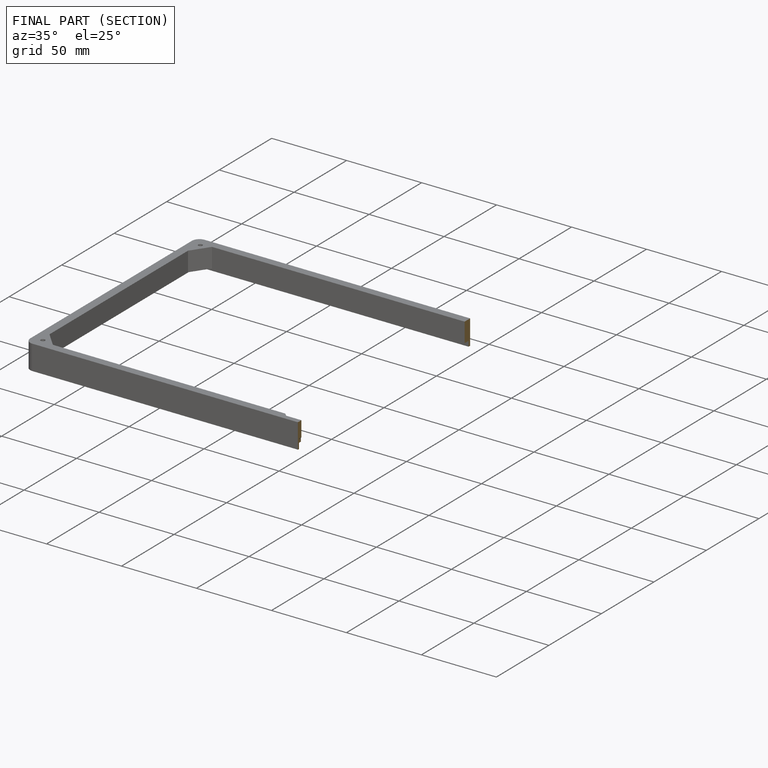
[diagram: finished part — half-section view (interior)]
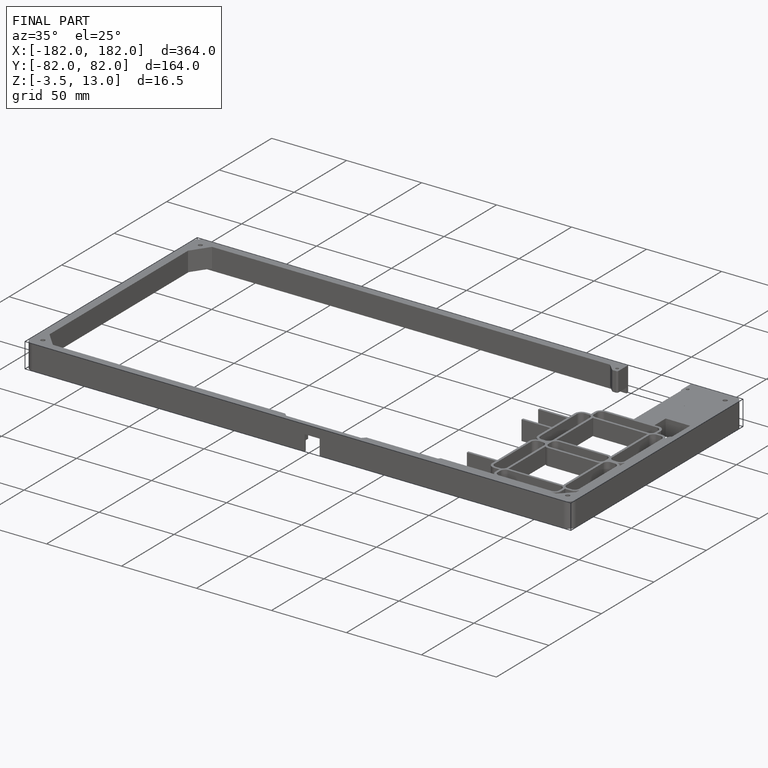
[diagram: finished part — iso view with bounding-box wireframe]
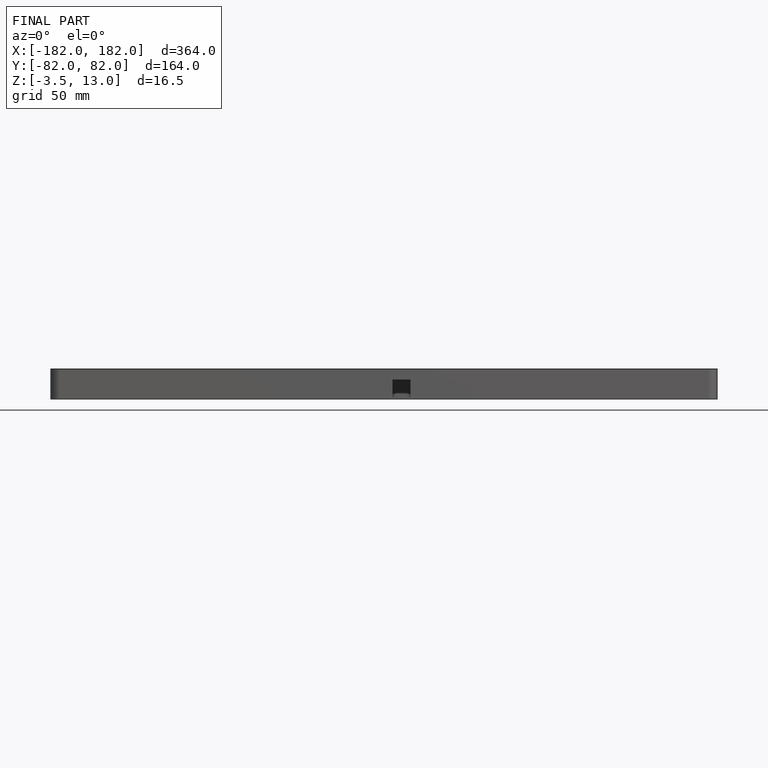
[diagram: finished part — front view with bounding-box wireframe]
